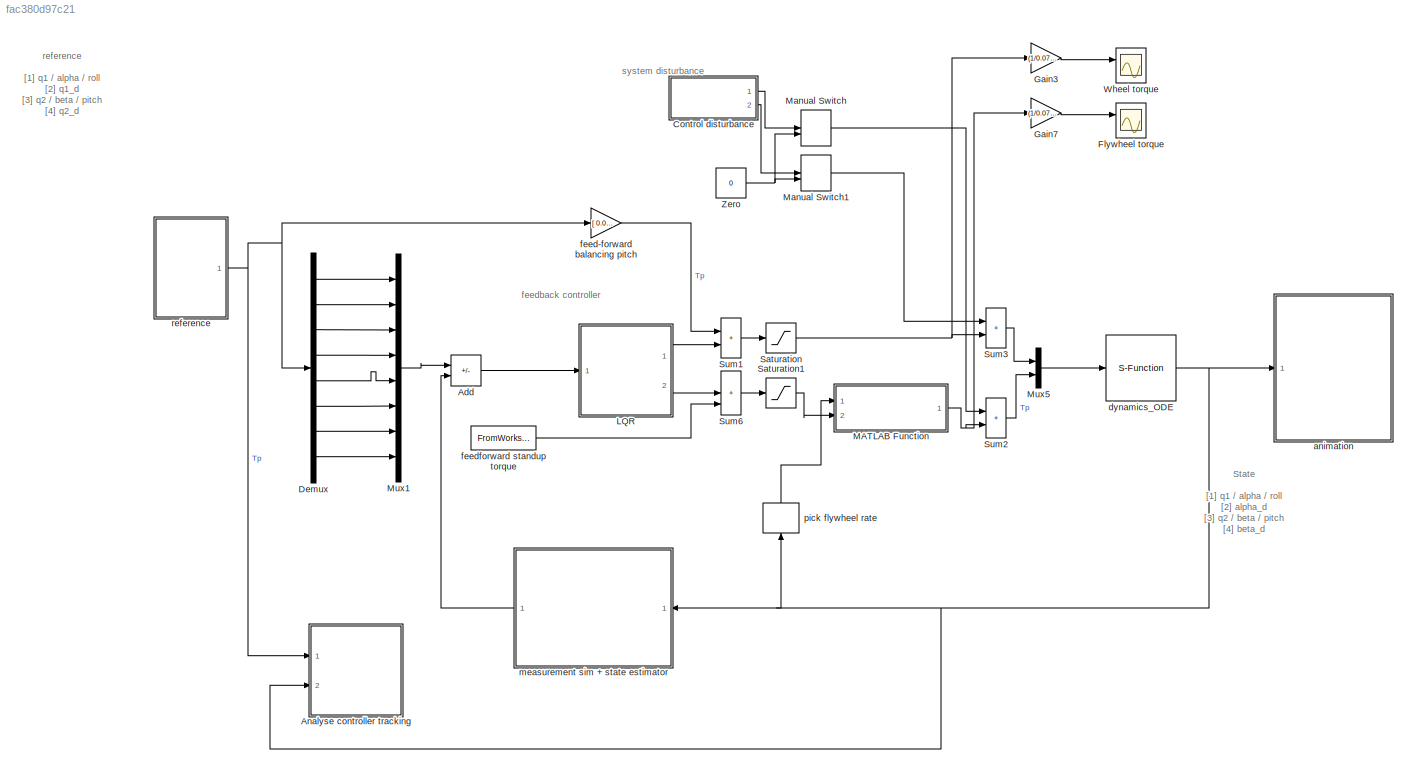
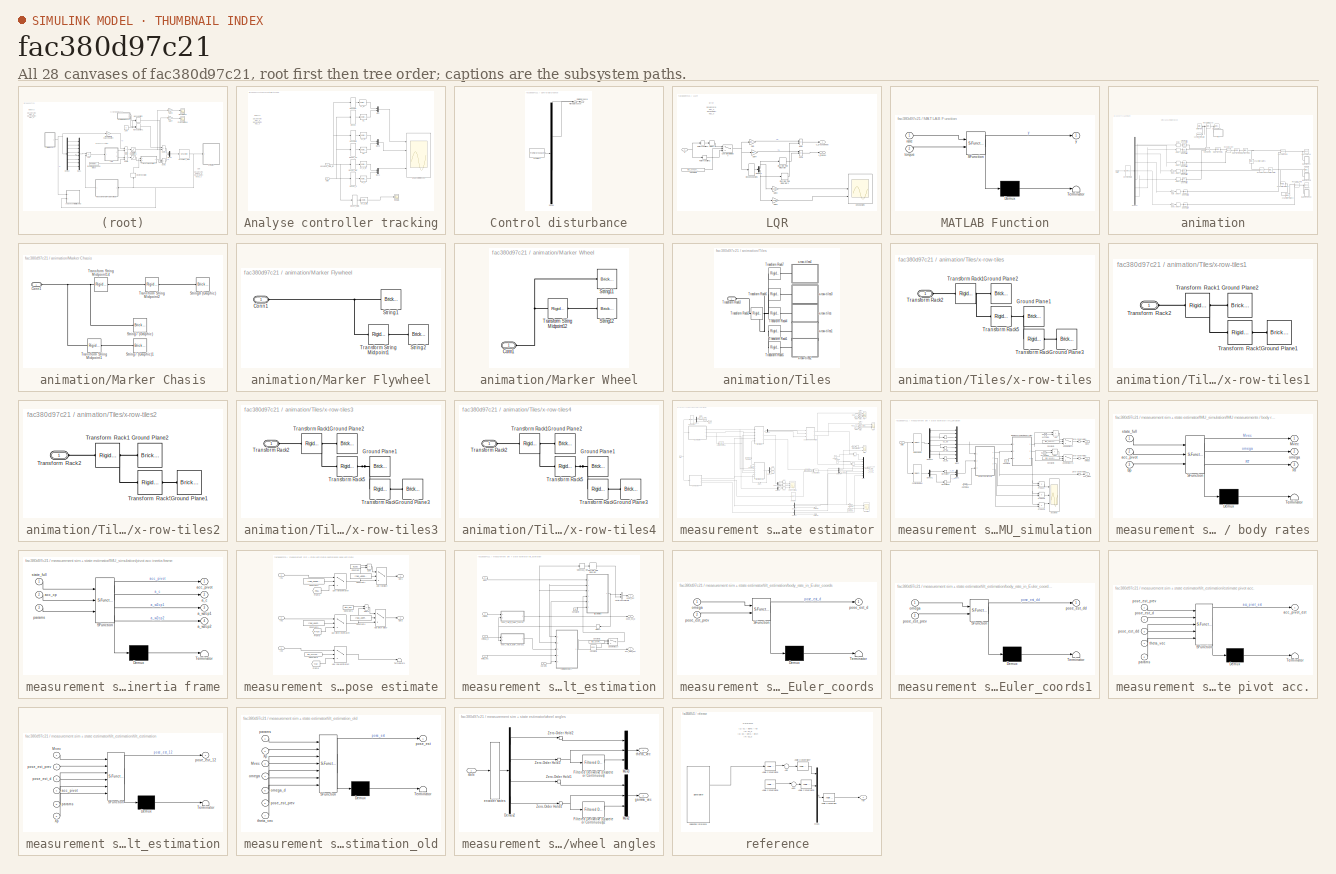
[diagram: thumbnail index - all 28 canvases of the model, root first then tree order]
MODEL slx_fac380d97c21
KIND model
CONFIG AbsTol = auto
CONFIG EnableMultiTasking = off
CONFIG FixedStep = 0.001
CONFIG InitFcn = clc, close all\n\nrun('./s00_config.m')\n\nload('./parameters/ut_obj')\nload('./parameters/yt_obj')\nload('./parameters/Kp')\nload('./parameters/Kr')\nload('./parameters/Mp')\nload('./parameters/Mr')\n\niterSeed = randi(500);
CONFIG MaxStep = auto
CONFIG MinStep = auto
CONFIG RelTol = auto
CONFIG SampleTimeConstraint = Unconstrained
CONFIG Solver = VariableStepAuto
CONFIG SolverName = VariableStepAuto
CONFIG StartTime = 0.0
CONFIG StopTime = 20
WORKSPACE source: mxarray member
WORKSPACE M: object (value not decoded)
WORKSPACE M_nonlin: object (value not decoded)
WORKSPACE M_tmp: object (value not decoded)
WORKSPACE RHS: object (value not decoded)
WORKSPACE RHS_nonlin: object (value not decoded)
WORKSPACE RHS_tmp: object (value not decoded)
WORKSPACE Tp: object (value not decoded)
WORKSPACE Tp_var = 0
WORKSPACE Tw: object (value not decoded)
WORKSPACE Tw_var = 0
WORKSPACE op_trim3: handle (value not decoded)
WORKSPACE q1: object (value not decoded)
WORKSPACE q1_d: object (value not decoded)
WORKSPACE q2: object (value not decoded)
WORKSPACE q2_d: object (value not decoded)
WORKSPACE q3: object (value not decoded)
WORKSPACE q3_d: object (value not decoded)
WORKSPACE q4: object (value not decoded)
WORKSPACE q4_d: object (value not decoded)
WORKSPACE q5: object (value not decoded)
WORKSPACE q5_d: object (value not decoded)
WORKSPACE z = [0 0 0 0 0 0 0 0 0 0 0 0 ... (100 elements, 10x10)]
BLOCK [Sum] Add
  IconShape = rectangular
  Inputs = -+
  Ports = [2, 1]
BLOCK [SubSystem] Analyse controller tracking
  Ports = [2]
  RequestExecContextInheritance = off
BLOCK [Mux] Analyse controller tracking/Mux
  DisplayOption = bar
  Inputs = 2
  Ports = [2, 1]
BLOCK [Mux] Analyse controller tracking/Mux1
  DisplayOption = bar
  Inputs = 2
  Ports = [2, 1]
BLOCK [Mux] Analyse controller tracking/Mux3
  DisplayOption = bar
  Inputs = 2
  Ports = [2, 1]
BLOCK [Scope] Analyse controller tracking/Scope
  Floating = off
  NumInputPorts = 1
  Ports = [1]
  ScopeSpecificationString = Simulink.scopes.TimeScopeBlockCfg('CurrentConfiguration', extmgr.ConfigurationSet(extmgr.Configuration('Core','General UI',true),extmgr.Configuration('Core','Source UI',true),extmgr.Configuration('Sources','WiredSimulink',true,'DataLoggingVariableName','ScopeData1'),extmgr.Configuration('Visuals','Time Domain',true,'SerializedDisplays',{struct('MinYLimReal','-1.00000','MaxYLimReal','1.00000','YLab...<+1368ch>
BLOCK [Scope] Analyse controller tracking/analyse references
  Floating = off
  NumInputPorts = 4
  Ports = [4]
  ScopeSpecificationString = Simulink.scopes.TimeScopeBlockCfg('CurrentConfiguration', extmgr.ConfigurationSet(extmgr.Configuration('Core','General UI',true),extmgr.Configuration('Core','Source UI',true),extmgr.Configuration('Sources','WiredSimulink',true,'DataLoggingVariableName','ScopeData1'),extmgr.Configuration('Visuals','Time Domain',true,'SerializedDisplays',{struct('MinYLimReal','-48.62631','MaxYLimReal','13.22817','YL...<+4126ch>
BLOCK [Inport] Analyse controller tracking/observed_state_ref
BLOCK [Selector] Analyse controller tracking/pick q1
  IndexOptions = Index vector (dialog)
  Indices = [1]
  InputPortWidth = 14
  OutputSizes = 1
  Ports = [1, 1]
BLOCK [Selector] Analyse controller tracking/pick q1 ref
  IndexOptions = Index vector (dialog)
  Indices = [1]
  InputPortWidth = 8
  OutputSizes = 1
  Ports = [1, 1]
BLOCK [Selector] Analyse controller tracking/pick q2 ref1
  IndexOptions = Index vector (dialog)
  Indices = [3]
  InputPortWidth = 8
  OutputSizes = 1
  Ports = [1, 1]
BLOCK [Selector] Analyse controller tracking/pick q4_d
  IndexOptions = Index vector (dialog)
  Indices = [8]
  InputPortWidth = 14
  OutputSizes = 1
  Ports = [1, 1]
BLOCK [Selector] Analyse controller tracking/pick q4_d ref
  IndexOptions = Index vector (dialog)
  Indices = [6]
  InputPortWidth = 8
  OutputSizes = 1
  Ports = [1, 1]
BLOCK [Selector] Analyse controller tracking/pick q4_d ref1
  IndexOptions = Index vector (dialog)
  Indices = [8]
  InputPortWidth = 8
  OutputSizes = 1
  Ports = [1, 1]
BLOCK [Selector] Analyse controller tracking/pick q4_d1
  IndexOptions = Index vector (dialog)
  Indices = [3]
  InputPortWidth = 14
  OutputSizes = 1
  Ports = [1, 1]
BLOCK [Reference] Analyse controller tracking/q1  REF=aerolibconvert2/Angle Conversion
  Ports = [1, 1]
  SourceBlock = aerolibconvert2/Angle Conversion
  SourceProductBaseCode = AE
  SourceType = Angle Conversion
BLOCK [Reference] Analyse controller tracking/q1_ref  REF=aerolibconvert2/Angle Conversion
  Ports = [1, 1]
  SourceBlock = aerolibconvert2/Angle Conversion
  SourceProductBaseCode = AE
  SourceType = Angle Conversion
BLOCK [Reference] Analyse controller tracking/q2  REF=aerolibconvert2/Angle Conversion
  Ports = [1, 1]
  SourceBlock = aerolibconvert2/Angle Conversion
  SourceProductBaseCode = AE
  SourceType = Angle Conversion
BLOCK [Reference] Analyse controller tracking/q2_ref  REF=aerolibconvert2/Angle Conversion
  Ports = [1, 1]
  SourceBlock = aerolibconvert2/Angle Conversion
  SourceProductBaseCode = AE
  SourceType = Angle Conversion
BLOCK [Reference] Analyse controller tracking/q4_d  REF=aerolibconvert2/Angle Conversion
  Ports = [1, 1]
  SourceBlock = aerolibconvert2/Angle Conversion
  SourceProductBaseCode = AE
  SourceType = Angle Conversion
BLOCK [Reference] Analyse controller tracking/q4_d_ref  REF=aerolibconvert2/Angle Conversion
  Ports = [1, 1]
  SourceBlock = aerolibconvert2/Angle Conversion
  SourceProductBaseCode = AE
  SourceType = Angle Conversion
BLOCK [Reference] Analyse controller tracking/q4_d_ref1  REF=aerolibconvert2/Angle Conversion
  Ports = [1, 1]
  SourceBlock = aerolibconvert2/Angle Conversion
  SourceProductBaseCode = AE
  SourceType = Angle Conversion
BLOCK [Inport] Analyse controller tracking/state
  Port = 2
BLOCK [SubSystem] Control disturbance
  ClipboardFcn = sigbuilder_block('clipboard');
  CloseFcn = sigbuilder_block('close');
  ContinueFcn = sigbuilder_block('continue');
  CopyFcn = sigbuilder_block('copy');
  DeleteFcn = sigbuilder_block('delete');
  LoadFcn = sigbuilder_block('load');
  MaskHideContents = on
  ModelCloseFcn = sigbuilder_block('modelClose');
  NameChangeFcn = sigbuilder_block('namechange');
  OpenFcn = sigbuilder_block('open',[437.6 199.2 550.4 400 ]);
  PauseFcn = sigbuilder_block('pause');
  Ports = [0, 2]
  PreSaveFcn = sigbuilder_block('preSave');
  RequestExecContextInheritance = off
  StartFcn = sigbuilder_block('start');
  StopFcn = sigbuilder_block('stop');
  Tag = STV Subsys
BLOCK [Demux] Control disturbance/Demux
  DisplayOption = none
  Outputs = 2
  Ports = [1, 2]
  Tag = STV Demux
BLOCK [FromWorkspace] Control disturbance/FromWs
  Tag = STV FromWs
  VariableName = tuvar
BLOCK [Outport] Control disturbance/Pitch disturbance
  Tag = STV Outport
BLOCK [Outport] Control disturbance/Roll disturbance
  Port = 2
  Tag = STV Outport
BLOCK [Demux] Demux
  Outputs = 8
  Ports = [1, 8]
BLOCK [Scope] Flywheel torque
  Floating = off
  NumInputPorts = 2
  Ports = [2]
  ScopeSpecificationString = Simulink.scopes.TimeScopeBlockCfg('CurrentConfiguration', extmgr.ConfigurationSet(extmgr.Configuration('Core','General UI',true),extmgr.Configuration('Core','Source UI',true),extmgr.Configuration('Sources','WiredSimulink',true,'DataLoggingVariableName','ScopeData2'),extmgr.Configuration('Visuals','Time Domain',true,'SerializedDisplays',{struct('MinYLimReal','-21.33333','MaxYLimReal','21.33333','YL...<+1551ch>
BLOCK [Gain] Gain3
  Gain = (1/0.075)
BLOCK [Gain] Gain7
  Gain = (1/0.075)
BLOCK [SubSystem] LQR
  Ports = [1, 2]
  RequestExecContextInheritance = off
BLOCK [Constant] LQR/Constant6
  Value = flag_useControlDelay
BLOCK [Delay] LQR/Delay1
  InputPortMap = u0
  Ports = [1, 1]
  SampleTime = Ts
BLOCK [Demux] LQR/Demux1
  Outputs = 2
  Ports = [1, 2]
BLOCK [DiscreteIntegrator] LQR/Discrete-Time Integrator
  ICPrevOutput = DiscIntNeverNeededParam
  ICPrevScaledInput = DiscIntNeverNeededParam
  InitialConditionSetting = Auto
  Ports = [1, 1]
  SampleTime = -1
  gainval = gain_int_roll
BLOCK [DiscreteIntegrator] LQR/Discrete-Time Integrator2
  ICPrevOutput = DiscIntNeverNeededParam
  ICPrevScaledInput = DiscIntNeverNeededParam
  InitialConditionSetting = Auto
  Ports = [1, 1]
  SampleTime = -1
  gainval = gain_int_pitch
BLOCK [Gain] LQR/Gain
  Gain = [  0.00  0.00    Kp(1)   Kp(2)   Kp(3)  Kp(4)   0.00   0.00  ]
  Multiplication = Matrix(K*u) (u vector)
BLOCK [Gain] LQR/Gain2
  Gain = 180/pi
BLOCK [Gain] LQR/Gain3
  Gain = 180/pi
BLOCK [Gain] LQR/Gain4
  Gain = [ Kr(1)    Kr(2)    0.00    -0.00    0.00    0.00    Kr(3)    Kr(4) ]
  Multiplication = Matrix(K*u) (u vector)
BLOCK [RateTransition] LQR/Rate Transition1
  OutPortSampleTime = Ts
BLOCK [RateTransition] LQR/Rate Transition2
  OutPortSampleTime = Ts
BLOCK [Sum] LQR/Sum
  IconShape = rectangular
  Inputs = |--
  Ports = [2, 1]
BLOCK [Sum] LQR/Sum1
  IconShape = rectangular
  Inputs = |-++
  Ports = [3, 1]
BLOCK [Switch] LQR/Use rate estimates?
  Criteria = u2 > Threshold
  InputSameDT = off
  NameLocation = top
  SaturateOnIntegerOverflow = off
BLOCK [Inport] LQR/e
BLOCK [Selector] LQR/pick pose angles
  IndexOptions = Index vector (dialog)
  Indices = [1,3]
  InputPortWidth = 8
  OutputSizes = 1
  Ports = [1, 1]
BLOCK [Scope] LQR/pose angles
  Floating = off
  NumInputPorts = 3
  Ports = [3]
  ScopeSpecificationString = Simulink.scopes.TimeScopeBlockCfg('CurrentConfiguration', extmgr.ConfigurationSet(extmgr.Configuration('Core','General UI',true),extmgr.Configuration('Core','Source UI',true),extmgr.Configuration('Sources','WiredSimulink',true,'DataLoggingVariableName','ScopeData1'),extmgr.Configuration('Visuals','Time Domain',true,'SerializedDisplays',{struct('MinYLimReal','-2185.39764','MaxYLimReal','4128.27945'...<+1504ch>
BLOCK [Outport] LQR/u_flywheel
  Port = 2
  VectorParamsAs1DForOutWhenUnconnected = off
BLOCK [Outport] LQR/u_groundwheel
  VectorParamsAs1DForOutWhenUnconnected = off
BLOCK [SubSystem] MATLAB Function
  ErrorFcn = Stateflow.Translate.translate
  PermitHierarchicalResolution = ExplicitOnly
  Ports = [2, 1]
  RequestExecContextInheritance = off
  SFBlockType = MATLAB Function
  TreatAsAtomicUnit = on
BLOCK [Demux] MATLAB Function/ Demux 
  Outputs = 1
  Ports = [1, 1]
BLOCK [S-Function] MATLAB Function/ SFunction 
  EnableBusSupport = on
  FunctionName = sf_sfun
  PortCounts = [2 2]
  Ports = [2, 2]
  SFcnIsStateOwnerBlock = off
  SFunctionDeploymentMode = off
  Tag = Stateflow S-Function 12
BLOCK [Terminator] MATLAB Function/ Terminator 
BLOCK [Inport] MATLAB Function/rate
BLOCK [Inport] MATLAB Function/torque
  Port = 2
BLOCK [Outport] MATLAB Function/y
BLOCK [ManualSwitch] Manual Switch
  CurrentSetting = 0
BLOCK [ManualSwitch] Manual Switch1
  CurrentSetting = 0
BLOCK [Mux] Mux1
  DisplayOption = bar
  Inputs = 8
  Ports = [8, 1]
BLOCK [Mux] Mux5
  DisplayOption = bar
  Inputs = 2
  Ports = [2, 1]
BLOCK [Saturate] Saturation
  LowerLimit = -stall_torque
  UpperLimit = stall_torque
BLOCK [Saturate] Saturation1
  LowerLimit = -stall_torque
  UpperLimit = stall_torque
BLOCK [Sum] Sum1
  IconShape = rectangular
  Ports = [2, 1]
BLOCK [Sum] Sum2
  IconShape = rectangular
  Ports = [2, 1]
BLOCK [Sum] Sum3
  IconShape = rectangular
  Ports = [2, 1]
BLOCK [Sum] Sum6
  IconShape = rectangular
  Inputs = +++
  Ports = [3, 1]
BLOCK [Scope] Wheel torque
  Floating = off
  NumInputPorts = 2
  Ports = [2]
  ScopeSpecificationString = Simulink.scopes.TimeScopeBlockCfg('CurrentConfiguration', extmgr.ConfigurationSet(extmgr.Configuration('Core','General UI',true),extmgr.Configuration('Core','Source UI',true),extmgr.Configuration('Sources','WiredSimulink',true,'DataLoggingVariableName','ScopeData1'),extmgr.Configuration('Visuals','Time Domain',true,'SerializedDisplays',{struct('MinYLimReal','-21.33333','MaxYLimReal','21.33333','YL...<+1551ch>
BLOCK [Constant] Zero
  OutDataTypeStr = Inherit: Inherit via back propagation
  Value = 0
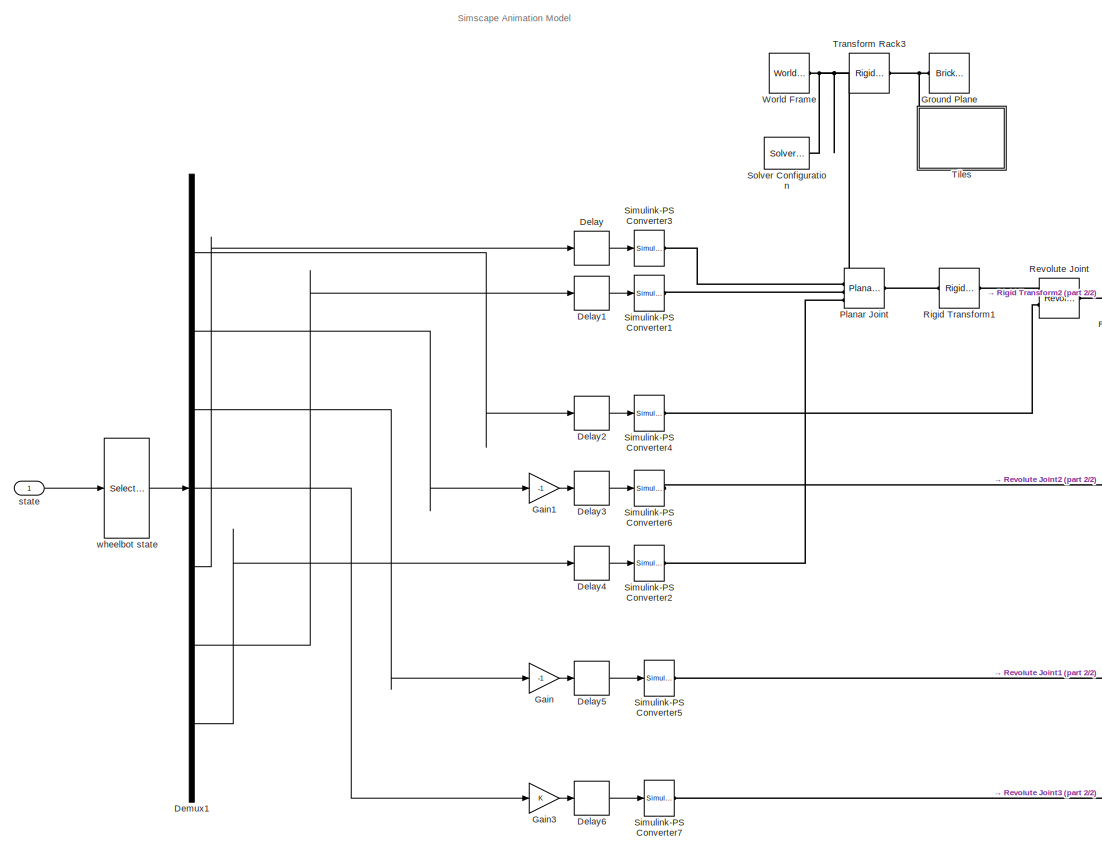
[diagram: animation - part 1/2, left side, full height]
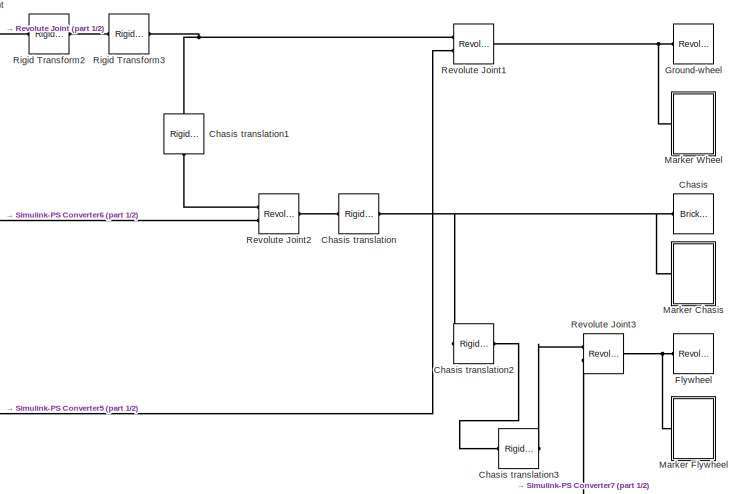
[diagram: animation - part 2/2, middle right region]
BLOCK [SubSystem] animation
  Ports = [1]
  RequestExecContextInheritance = off
BLOCK [Reference] animation/Chasis  REF=sm_lib/Body Elements/Brick Solid
  Ports = [0, 0, 0, 0, 0, 0, 1]
  SourceBlock = sm_lib/Body Elements/Brick Solid
  SourceProductBaseCode = MS
  SourceType = Brick Solid
BLOCK [Reference] animation/Chasis translation  REF=sm_lib/Frames and
Transforms/Rigid
Transform
  Ports = [0, 0, 0, 0, 0, 1, 1]
  SourceBlock = sm_lib/Frames and\nTransforms/Rigid\nTransform
  SourceProductBaseCode = MS
  SourceType = Rigid\nTransform
BLOCK [Reference] animation/Chasis translation1  REF=sm_lib/Frames and
Transforms/Rigid
Transform
  NameLocation = left
  Ports = [0, 0, 0, 0, 0, 1, 1]
  SourceBlock = sm_lib/Frames and\nTransforms/Rigid\nTransform
  SourceProductBaseCode = MS
  SourceType = Rigid\nTransform
BLOCK [Reference] animation/Chasis translation2  REF=sm_lib/Frames and
Transforms/Rigid
Transform
  Ports = [0, 0, 0, 0, 0, 1, 1]
  SourceBlock = sm_lib/Frames and\nTransforms/Rigid\nTransform
  SourceProductBaseCode = MS
  SourceType = Rigid\nTransform
BLOCK [Reference] animation/Chasis translation3  REF=sm_lib/Frames and
Transforms/Rigid
Transform
  Ports = [0, 0, 0, 0, 0, 1, 1]
  SourceBlock = sm_lib/Frames and\nTransforms/Rigid\nTransform
  SourceProductBaseCode = MS
  SourceType = Rigid\nTransform
BLOCK [Delay] animation/Delay
  DelayLength = 1
  InputPortMap = u0
  Ports = [1, 1]
BLOCK [Delay] animation/Delay1
  DelayLength = 1
  InputPortMap = u0
  Ports = [1, 1]
BLOCK [Delay] animation/Delay2
  DelayLength = 1
  InputPortMap = u0
  Ports = [1, 1]
BLOCK [Delay] animation/Delay3
  DelayLength = 1
  InputPortMap = u0
  Ports = [1, 1]
BLOCK [Delay] animation/Delay4
  DelayLength = 1
  InputPortMap = u0
  Ports = [1, 1]
BLOCK [Delay] animation/Delay5
  DelayLength = 1
  InputPortMap = u0
  Ports = [1, 1]
BLOCK [Delay] animation/Delay6
  DelayLength = 1
  InputPortMap = u0
  Ports = [1, 1]
BLOCK [Demux] animation/Demux1
  Outputs = 7
  Ports = [1, 7]
BLOCK [Reference] animation/Flywheel  REF=sm_lib/Body Elements/Revolved Solid
  Ports = [0, 0, 0, 0, 0, 0, 1]
  SourceBlock = sm_lib/Body Elements/Revolved Solid
  SourceProductBaseCode = MS
  SourceType = Revolved Solid
BLOCK [Gain] animation/Gain
  Gain = -1
BLOCK [Gain] animation/Gain1
  Gain = -1
BLOCK [Gain] animation/Gain3
BLOCK [Reference] animation/Ground Plane  REF=sm_lib/Body Elements/Brick Solid
  NameLocation = top
  Ports = [0, 0, 0, 0, 0, 0, 1]
  SourceBlock = sm_lib/Body Elements/Brick Solid
  SourceProductBaseCode = MS
  SourceType = Brick Solid
BLOCK [Reference] animation/Ground-wheel  REF=sm_lib/Body Elements/Revolved Solid
  Ports = [0, 0, 0, 0, 0, 0, 1]
  SourceBlock = sm_lib/Body Elements/Revolved Solid
  SourceProductBaseCode = MS
  SourceType = Revolved Solid
BLOCK [SubSystem] animation/Marker Chasis
  Ports = [0, 0, 0, 0, 0, 1]
  RequestExecContextInheritance = off
BLOCK [PMIOPort] animation/Marker Chasis/Conn1
  Side = Left
BLOCK [Reference] animation/Marker Chasis/String7 (Graphic)  REF=sm_lib/Body Elements/Brick Solid
  Ports = [0, 0, 0, 0, 0, 0, 1]
  SourceBlock = sm_lib/Body Elements/Brick Solid
  SourceProductBaseCode = MS
  SourceType = Brick Solid
BLOCK [Reference] animation/Marker Chasis/String7 (Graphic)1  REF=sm_lib/Body Elements/Brick Solid
  Ports = [0, 0, 0, 0, 0, 0, 1]
  SourceBlock = sm_lib/Body Elements/Brick Solid
  SourceProductBaseCode = MS
  SourceType = Brick Solid
BLOCK [Reference] animation/Marker Chasis/String8 (Graphic)  REF=sm_lib/Body Elements/Brick Solid
  Ports = [0, 0, 0, 0, 0, 0, 1]
  SourceBlock = sm_lib/Body Elements/Brick Solid
  SourceProductBaseCode = MS
  SourceType = Brick Solid
BLOCK [Reference] animation/Marker Chasis/Transform String Midpoint1  REF=sm_lib/Frames and
Transforms/Rigid
Transform
  Ports = [0, 0, 0, 0, 0, 1, 1]
  SourceBlock = sm_lib/Frames and\nTransforms/Rigid\nTransform
  SourceProductBaseCode = MS
  SourceType = Rigid\nTransform
BLOCK [Reference] animation/Marker Chasis/Transform String Midpoint14  REF=sm_lib/Frames and
Transforms/Rigid
Transform
  Ports = [0, 0, 0, 0, 0, 1, 1]
  SourceBlock = sm_lib/Frames and\nTransforms/Rigid\nTransform
  SourceProductBaseCode = MS
  SourceType = Rigid\nTransform
BLOCK [Reference] animation/Marker Chasis/Transform String Midpoint2  REF=sm_lib/Frames and
Transforms/Rigid
Transform
  Ports = [0, 0, 0, 0, 0, 1, 1]
  SourceBlock = sm_lib/Frames and\nTransforms/Rigid\nTransform
  SourceProductBaseCode = MS
  SourceType = Rigid\nTransform
BLOCK [SubSystem] animation/Marker Flywheel
  Ports = [0, 0, 0, 0, 0, 1]
  RequestExecContextInheritance = off
BLOCK [PMIOPort] animation/Marker Flywheel/Conn1
  Side = Left
BLOCK [Reference] animation/Marker Flywheel/String1  REF=sm_lib/Body Elements/Brick Solid
  Ports = [0, 0, 0, 0, 0, 0, 1]
  SourceBlock = sm_lib/Body Elements/Brick Solid
  SourceProductBaseCode = MS
  SourceType = Brick Solid
BLOCK [Reference] animation/Marker Flywheel/String2  REF=sm_lib/Body Elements/Brick Solid
  Ports = [0, 0, 0, 0, 0, 0, 1]
  SourceBlock = sm_lib/Body Elements/Brick Solid
  SourceProductBaseCode = MS
  SourceType = Brick Solid
BLOCK [Reference] animation/Marker Flywheel/Transform String Midpoint1  REF=sm_lib/Frames and
Transforms/Rigid
Transform
  Ports = [0, 0, 0, 0, 0, 1, 1]
  SourceBlock = sm_lib/Frames and\nTransforms/Rigid\nTransform
  SourceProductBaseCode = MS
  SourceType = Rigid\nTransform
BLOCK [SubSystem] animation/Marker Wheel
  Ports = [0, 0, 0, 0, 0, 1]
  RequestExecContextInheritance = off
BLOCK [PMIOPort] animation/Marker Wheel/Conn1
  Side = Left
BLOCK [Reference] animation/Marker Wheel/String11  REF=sm_lib/Body Elements/Brick Solid
  Ports = [0, 0, 0, 0, 0, 0, 1]
  SourceBlock = sm_lib/Body Elements/Brick Solid
  SourceProductBaseCode = MS
  SourceType = Brick Solid
BLOCK [Reference] animation/Marker Wheel/String12  REF=sm_lib/Body Elements/Brick Solid
  Ports = [0, 0, 0, 0, 0, 0, 1]
  SourceBlock = sm_lib/Body Elements/Brick Solid
  SourceProductBaseCode = MS
  SourceType = Brick Solid
BLOCK [Reference] animation/Marker Wheel/Transform String Midpoint12  REF=sm_lib/Frames and
Transforms/Rigid
Transform
  Ports = [0, 0, 0, 0, 0, 1, 1]
  SourceBlock = sm_lib/Frames and\nTransforms/Rigid\nTransform
  SourceProductBaseCode = MS
  SourceType = Rigid\nTransform
BLOCK [Reference] animation/Planar Joint  REF=sm_lib/Joints/Planar Joint
  Ports = [0, 0, 0, 0, 0, 4, 1]
  SourceBlock = sm_lib/Joints/Planar Joint
  SourceProductBaseCode = MS
  SourceType = Planar Joint
BLOCK [Reference] animation/Revolute Joint  REF=sm_lib/Joints/Revolute Joint
  Ports = [0, 0, 0, 0, 0, 2, 1]
  SourceBlock = sm_lib/Joints/Revolute Joint
  SourceProductBaseCode = MS
  SourceType = Revolute Joint
BLOCK [Reference] animation/Revolute Joint1  REF=sm_lib/Joints/Revolute Joint
  Ports = [0, 0, 0, 0, 0, 2, 1]
  SourceBlock = sm_lib/Joints/Revolute Joint
  SourceProductBaseCode = MS
  SourceType = Revolute Joint
BLOCK [Reference] animation/Revolute Joint2  REF=sm_lib/Joints/Revolute Joint
  Ports = [0, 0, 0, 0, 0, 2, 1]
  SourceBlock = sm_lib/Joints/Revolute Joint
  SourceProductBaseCode = MS
  SourceType = Revolute Joint
BLOCK [Reference] animation/Revolute Joint3  REF=sm_lib/Joints/Revolute Joint
  Ports = [0, 0, 0, 0, 0, 2, 1]
  SourceBlock = sm_lib/Joints/Revolute Joint
  SourceProductBaseCode = MS
  SourceType = Revolute Joint
BLOCK [Reference] animation/Rigid Transform1  REF=sm_lib/Frames and
Transforms/Rigid
Transform
  Ports = [0, 0, 0, 0, 0, 1, 1]
  SourceBlock = sm_lib/Frames and\nTransforms/Rigid\nTransform
  SourceProductBaseCode = MS
  SourceType = Rigid\nTransform
BLOCK [Reference] animation/Rigid Transform2  REF=sm_lib/Frames and
Transforms/Rigid
Transform
  Ports = [0, 0, 0, 0, 0, 1, 1]
  SourceBlock = sm_lib/Frames and\nTransforms/Rigid\nTransform
  SourceProductBaseCode = MS
  SourceType = Rigid\nTransform
BLOCK [Reference] animation/Rigid Transform3  REF=sm_lib/Frames and
Transforms/Rigid
Transform
  Ports = [0, 0, 0, 0, 0, 1, 1]
  SourceBlock = sm_lib/Frames and\nTransforms/Rigid\nTransform
  SourceProductBaseCode = MS
  SourceType = Rigid\nTransform
BLOCK [Reference] animation/Simulink-PS Converter1  REF=nesl_utility/Simulink-PS
Converter
  Ports = [1, 0, 0, 0, 0, 0, 1]
  SourceBlock = nesl_utility/Simulink-PS\nConverter
  SourceProductBaseCode = SS
  SourceType = Simulink-PS\nConverter
BLOCK [Reference] animation/Simulink-PS Converter2  REF=nesl_utility/Simulink-PS
Converter
  Ports = [1, 0, 0, 0, 0, 0, 1]
  SourceBlock = nesl_utility/Simulink-PS\nConverter
  SourceProductBaseCode = SS
  SourceType = Simulink-PS\nConverter
BLOCK [Reference] animation/Simulink-PS Converter3  REF=nesl_utility/Simulink-PS
Converter
  Ports = [1, 0, 0, 0, 0, 0, 1]
  SourceBlock = nesl_utility/Simulink-PS\nConverter
  SourceProductBaseCode = SS
  SourceType = Simulink-PS\nConverter
BLOCK [Reference] animation/Simulink-PS Converter4  REF=nesl_utility/Simulink-PS
Converter
  Ports = [1, 0, 0, 0, 0, 0, 1]
  SourceBlock = nesl_utility/Simulink-PS\nConverter
  SourceProductBaseCode = SS
  SourceType = Simulink-PS\nConverter
BLOCK [Reference] animation/Simulink-PS Converter5  REF=nesl_utility/Simulink-PS
Converter
  Ports = [1, 0, 0, 0, 0, 0, 1]
  SourceBlock = nesl_utility/Simulink-PS\nConverter
  SourceProductBaseCode = SS
  SourceType = Simulink-PS\nConverter
BLOCK [Reference] animation/Simulink-PS Converter6  REF=nesl_utility/Simulink-PS
Converter
  Ports = [1, 0, 0, 0, 0, 0, 1]
  SourceBlock = nesl_utility/Simulink-PS\nConverter
  SourceProductBaseCode = SS
  SourceType = Simulink-PS\nConverter
BLOCK [Reference] animation/Simulink-PS Converter7  REF=nesl_utility/Simulink-PS
Converter
  Ports = [1, 0, 0, 0, 0, 0, 1]
  SourceBlock = nesl_utility/Simulink-PS\nConverter
  SourceProductBaseCode = SS
  SourceType = Simulink-PS\nConverter
BLOCK [Reference] animation/Solver Configuration  REF=nesl_utility/Solver
Configuration
  Ports = [0, 0, 0, 0, 0, 0, 1]
  SourceBlock = nesl_utility/Solver\nConfiguration
  SourceProductBaseCode = SS
  SourceType = Solver\nConfiguration
BLOCK [SubSystem] animation/Tiles
  Ports = [0, 0, 0, 0, 0, 1]
  RequestExecContextInheritance = off
BLOCK [Reference] animation/Tiles/Transform Rack1  REF=sm_lib/Frames and
Transforms/Rigid
Transform
  Ports = [0, 0, 0, 0, 0, 1, 1]
  SourceBlock = sm_lib/Frames and\nTransforms/Rigid\nTransform
  SourceProductBaseCode = MS
  SourceType = Rigid\nTransform
BLOCK [Reference] animation/Tiles/Transform Rack2  REF=sm_lib/Frames and
Transforms/Rigid
Transform
  Ports = [0, 0, 0, 0, 0, 1, 1]
  SourceBlock = sm_lib/Frames and\nTransforms/Rigid\nTransform
  SourceProductBaseCode = MS
  SourceType = Rigid\nTransform
BLOCK [PMIOPort] animation/Tiles/Transform Rack3
  Side = Left
BLOCK [Reference] animation/Tiles/Transform Rack4  REF=sm_lib/Frames and
Transforms/Rigid
Transform
  Ports = [0, 0, 0, 0, 0, 1, 1]
  SourceBlock = sm_lib/Frames and\nTransforms/Rigid\nTransform
  SourceProductBaseCode = MS
  SourceType = Rigid\nTransform
BLOCK [Reference] animation/Tiles/Transform Rack5  REF=sm_lib/Frames and
Transforms/Rigid
Transform
  Ports = [0, 0, 0, 0, 0, 1, 1]
  SourceBlock = sm_lib/Frames and\nTransforms/Rigid\nTransform
  SourceProductBaseCode = MS
  SourceType = Rigid\nTransform
BLOCK [Reference] animation/Tiles/Transform Rack6  REF=sm_lib/Frames and
Transforms/Rigid
Transform
  Ports = [0, 0, 0, 0, 0, 1, 1]
  SourceBlock = sm_lib/Frames and\nTransforms/Rigid\nTransform
  SourceProductBaseCode = MS
  SourceType = Rigid\nTransform
BLOCK [Reference] animation/Tiles/Transform Rack7  REF=sm_lib/Frames and
Transforms/Rigid
Transform
  Ports = [0, 0, 0, 0, 0, 1, 1]
  SourceBlock = sm_lib/Frames and\nTransforms/Rigid\nTransform
  SourceProductBaseCode = MS
  SourceType = Rigid\nTransform
BLOCK [SubSystem] animation/Tiles/x-row-tiles
  Ports = [0, 0, 0, 0, 0, 1]
  RequestExecContextInheritance = off
BLOCK [Reference] animation/Tiles/x-row-tiles/Ground Plane1  REF=sm_lib/Body Elements/Brick Solid
  NameLocation = top
  Ports = [0, 0, 0, 0, 0, 0, 1]
  SourceBlock = sm_lib/Body Elements/Brick Solid
  SourceProductBaseCode = MS
  SourceType = Brick Solid
BLOCK [Reference] animation/Tiles/x-row-tiles/Ground Plane2  REF=sm_lib/Body Elements/Brick Solid
  NameLocation = top
  Ports = [0, 0, 0, 0, 0, 0, 1]
  SourceBlock = sm_lib/Body Elements/Brick Solid
  SourceProductBaseCode = MS
  SourceType = Brick Solid
BLOCK [Reference] animation/Tiles/x-row-tiles/Ground Plane3  REF=sm_lib/Body Elements/Brick Solid
  NameLocation = top
  Ports = [0, 0, 0, 0, 0, 0, 1]
  SourceBlock = sm_lib/Body Elements/Brick Solid
  SourceProductBaseCode = MS
  SourceType = Brick Solid
BLOCK [Reference] animation/Tiles/x-row-tiles/Transform Rack1  REF=sm_lib/Frames and
Transforms/Rigid
Transform
  Ports = [0, 0, 0, 0, 0, 1, 1]
  SourceBlock = sm_lib/Frames and\nTransforms/Rigid\nTransform
  SourceProductBaseCode = MS
  SourceType = Rigid\nTransform
BLOCK [PMIOPort] animation/Tiles/x-row-tiles/Transform Rack2
  Side = Left
BLOCK [Reference] animation/Tiles/x-row-tiles/Transform Rack5  REF=sm_lib/Frames and
Transforms/Rigid
Transform
  Ports = [0, 0, 0, 0, 0, 1, 1]
  SourceBlock = sm_lib/Frames and\nTransforms/Rigid\nTransform
  SourceProductBaseCode = MS
  SourceType = Rigid\nTransform
BLOCK [Reference] animation/Tiles/x-row-tiles/Transform Rack6  REF=sm_lib/Frames and
Transforms/Rigid
Transform
  Ports = [0, 0, 0, 0, 0, 1, 1]
  SourceBlock = sm_lib/Frames and\nTransforms/Rigid\nTransform
  SourceProductBaseCode = MS
  SourceType = Rigid\nTransform
BLOCK [SubSystem] animation/Tiles/x-row-tiles1
  Ports = [0, 0, 0, 0, 0, 1]
  RequestExecContextInheritance = off
BLOCK [Reference] animation/Tiles/x-row-tiles1/Ground Plane1  REF=sm_lib/Body Elements/Brick Solid
  NameLocation = top
  Ports = [0, 0, 0, 0, 0, 0, 1]
  SourceBlock = sm_lib/Body Elements/Brick Solid
  SourceProductBaseCode = MS
  SourceType = Brick Solid
BLOCK [Reference] animation/Tiles/x-row-tiles1/Ground Plane2  REF=sm_lib/Body Elements/Brick Solid
  NameLocation = top
  Ports = [0, 0, 0, 0, 0, 0, 1]
  SourceBlock = sm_lib/Body Elements/Brick Solid
  SourceProductBaseCode = MS
  SourceType = Brick Solid
BLOCK [Reference] animation/Tiles/x-row-tiles1/Transform Rack1  REF=sm_lib/Frames and
Transforms/Rigid
Transform
  Ports = [0, 0, 0, 0, 0, 1, 1]
  SourceBlock = sm_lib/Frames and\nTransforms/Rigid\nTransform
  SourceProductBaseCode = MS
  SourceType = Rigid\nTransform
BLOCK [PMIOPort] animation/Tiles/x-row-tiles1/Transform Rack2
  Side = Left
BLOCK [Reference] animation/Tiles/x-row-tiles1/Transform Rack5  REF=sm_lib/Frames and
Transforms/Rigid
Transform
  Ports = [0, 0, 0, 0, 0, 1, 1]
  SourceBlock = sm_lib/Frames and\nTransforms/Rigid\nTransform
  SourceProductBaseCode = MS
  SourceType = Rigid\nTransform
BLOCK [SubSystem] animation/Tiles/x-row-tiles2
  Ports = [0, 0, 0, 0, 0, 1]
  RequestExecContextInheritance = off
BLOCK [Reference] animation/Tiles/x-row-tiles2/Ground Plane1  REF=sm_lib/Body Elements/Brick Solid
  NameLocation = top
  Ports = [0, 0, 0, 0, 0, 0, 1]
  SourceBlock = sm_lib/Body Elements/Brick Solid
  SourceProductBaseCode = MS
  SourceType = Brick Solid
BLOCK [Reference] animation/Tiles/x-row-tiles2/Ground Plane2  REF=sm_lib/Body Elements/Brick Solid
  NameLocation = top
  Ports = [0, 0, 0, 0, 0, 0, 1]
  SourceBlock = sm_lib/Body Elements/Brick Solid
  SourceProductBaseCode = MS
  SourceType = Brick Solid
BLOCK [Reference] animation/Tiles/x-row-tiles2/Transform Rack1  REF=sm_lib/Frames and
Transforms/Rigid
Transform
  Ports = [0, 0, 0, 0, 0, 1, 1]
  SourceBlock = sm_lib/Frames and\nTransforms/Rigid\nTransform
  SourceProductBaseCode = MS
  SourceType = Rigid\nTransform
BLOCK [PMIOPort] animation/Tiles/x-row-tiles2/Transform Rack2
  Side = Left
BLOCK [Reference] animation/Tiles/x-row-tiles2/Transform Rack5  REF=sm_lib/Frames and
Transforms/Rigid
Transform
  Ports = [0, 0, 0, 0, 0, 1, 1]
  SourceBlock = sm_lib/Frames and\nTransforms/Rigid\nTransform
  SourceProductBaseCode = MS
  SourceType = Rigid\nTransform
BLOCK [SubSystem] animation/Tiles/x-row-tiles3
  Ports = [0, 0, 0, 0, 0, 1]
  RequestExecContextInheritance = off
BLOCK [Reference] animation/Tiles/x-row-tiles3/Ground Plane1  REF=sm_lib/Body Elements/Brick Solid
  NameLocation = top
  Ports = [0, 0, 0, 0, 0, 0, 1]
  SourceBlock = sm_lib/Body Elements/Brick Solid
  SourceProductBaseCode = MS
  SourceType = Brick Solid
BLOCK [Reference] animation/Tiles/x-row-tiles3/Ground Plane2  REF=sm_lib/Body Elements/Brick Solid
  NameLocation = top
  Ports = [0, 0, 0, 0, 0, 0, 1]
  SourceBlock = sm_lib/Body Elements/Brick Solid
  SourceProductBaseCode = MS
  SourceType = Brick Solid
BLOCK [Reference] animation/Tiles/x-row-tiles3/Ground Plane3  REF=sm_lib/Body Elements/Brick Solid
  NameLocation = top
  Ports = [0, 0, 0, 0, 0, 0, 1]
  SourceBlock = sm_lib/Body Elements/Brick Solid
  SourceProductBaseCode = MS
  SourceType = Brick Solid
BLOCK [Reference] animation/Tiles/x-row-tiles3/Transform Rack1  REF=sm_lib/Frames and
Transforms/Rigid
Transform
  Ports = [0, 0, 0, 0, 0, 1, 1]
  SourceBlock = sm_lib/Frames and\nTransforms/Rigid\nTransform
  SourceProductBaseCode = MS
  SourceType = Rigid\nTransform
BLOCK [PMIOPort] animation/Tiles/x-row-tiles3/Transform Rack2
  Side = Left
BLOCK [Reference] animation/Tiles/x-row-tiles3/Transform Rack5  REF=sm_lib/Frames and
Transforms/Rigid
Transform
  Ports = [0, 0, 0, 0, 0, 1, 1]
  SourceBlock = sm_lib/Frames and\nTransforms/Rigid\nTransform
  SourceProductBaseCode = MS
  SourceType = Rigid\nTransform
BLOCK [Reference] animation/Tiles/x-row-tiles3/Transform Rack6  REF=sm_lib/Frames and
Transforms/Rigid
Transform
  Ports = [0, 0, 0, 0, 0, 1, 1]
  SourceBlock = sm_lib/Frames and\nTransforms/Rigid\nTransform
  SourceProductBaseCode = MS
  SourceType = Rigid\nTransform
BLOCK [SubSystem] animation/Tiles/x-row-tiles4
  Ports = [0, 0, 0, 0, 0, 1]
  RequestExecContextInheritance = off
BLOCK [Reference] animation/Tiles/x-row-tiles4/Ground Plane1  REF=sm_lib/Body Elements/Brick Solid
  NameLocation = top
  Ports = [0, 0, 0, 0, 0, 0, 1]
  SourceBlock = sm_lib/Body Elements/Brick Solid
  SourceProductBaseCode = MS
  SourceType = Brick Solid
BLOCK [Reference] animation/Tiles/x-row-tiles4/Ground Plane2  REF=sm_lib/Body Elements/Brick Solid
  NameLocation = top
  Ports = [0, 0, 0, 0, 0, 0, 1]
  SourceBlock = sm_lib/Body Elements/Brick Solid
  SourceProductBaseCode = MS
  SourceType = Brick Solid
BLOCK [Reference] animation/Tiles/x-row-tiles4/Ground Plane3  REF=sm_lib/Body Elements/Brick Solid
  NameLocation = top
  Ports = [0, 0, 0, 0, 0, 0, 1]
  SourceBlock = sm_lib/Body Elements/Brick Solid
  SourceProductBaseCode = MS
  SourceType = Brick Solid
BLOCK [Reference] animation/Tiles/x-row-tiles4/Transform Rack1  REF=sm_lib/Frames and
Transforms/Rigid
Transform
  Ports = [0, 0, 0, 0, 0, 1, 1]
  SourceBlock = sm_lib/Frames and\nTransforms/Rigid\nTransform
  SourceProductBaseCode = MS
  SourceType = Rigid\nTransform
BLOCK [PMIOPort] animation/Tiles/x-row-tiles4/Transform Rack2
  Side = Left
BLOCK [Reference] animation/Tiles/x-row-tiles4/Transform Rack5  REF=sm_lib/Frames and
Transforms/Rigid
Transform
  Ports = [0, 0, 0, 0, 0, 1, 1]
  SourceBlock = sm_lib/Frames and\nTransforms/Rigid\nTransform
  SourceProductBaseCode = MS
  SourceType = Rigid\nTransform
BLOCK [Reference] animation/Tiles/x-row-tiles4/Transform Rack6  REF=sm_lib/Frames and
Transforms/Rigid
Transform
  Ports = [0, 0, 0, 0, 0, 1, 1]
  SourceBlock = sm_lib/Frames and\nTransforms/Rigid\nTransform
  SourceProductBaseCode = MS
  SourceType = Rigid\nTransform
BLOCK [Reference] animation/Transform Rack3  REF=sm_lib/Frames and
Transforms/Rigid
Transform
  Ports = [0, 0, 0, 0, 0, 1, 1]
  SourceBlock = sm_lib/Frames and\nTransforms/Rigid\nTransform
  SourceProductBaseCode = MS
  SourceType = Rigid\nTransform
BLOCK [Reference] animation/World Frame  REF=sm_lib/Frames and
Transforms/World Frame
  Ports = [0, 0, 0, 0, 0, 0, 1]
  SourceBlock = sm_lib/Frames and\nTransforms/World Frame
  SourceProductBaseCode = MS
  SourceType = World Frame
BLOCK [Inport] animation/state
BLOCK [Selector] animation/wheelbot state
  IndexOptions = Index vector (dialog)
  Indices = [1 3 7 9 11 12 5]
  InputPortWidth = 14
  OutputSizes = 1
  Ports = [1, 1]
BLOCK [S-Function] dynamics_ODE
  EnableBusSupport = off
  FunctionName = unicycleSFun
  Ports = [1, 1]
  SFcnIsStateOwnerBlock = off
  SFunctionDeploymentMode = off
BLOCK [Gain] feed-forward balancing pitch
  Gain = [   0.0  0.0    Kp(1)   Kp(2)   Kp(3)  Kp(4)   0.0   0.0]
  Multiplication = Matrix(K*u) (u vector)
BLOCK [FromWorkspace] feedforward standup torque
  VariableName = ut_obj
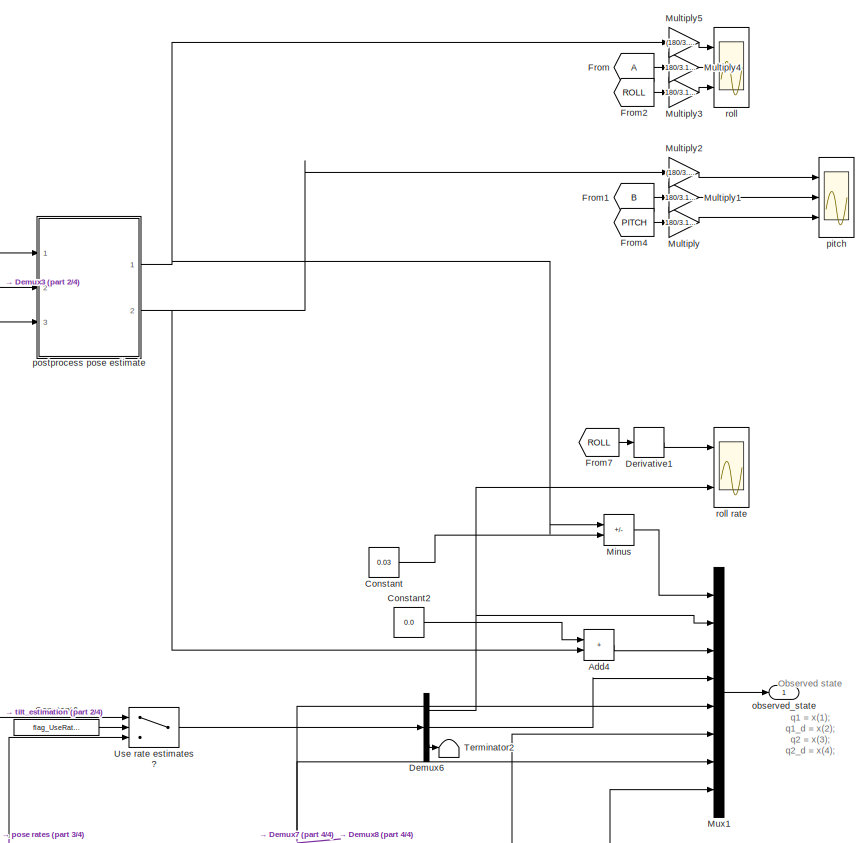
[diagram: measurement sim + state estimator - part 1/4, middle right region]
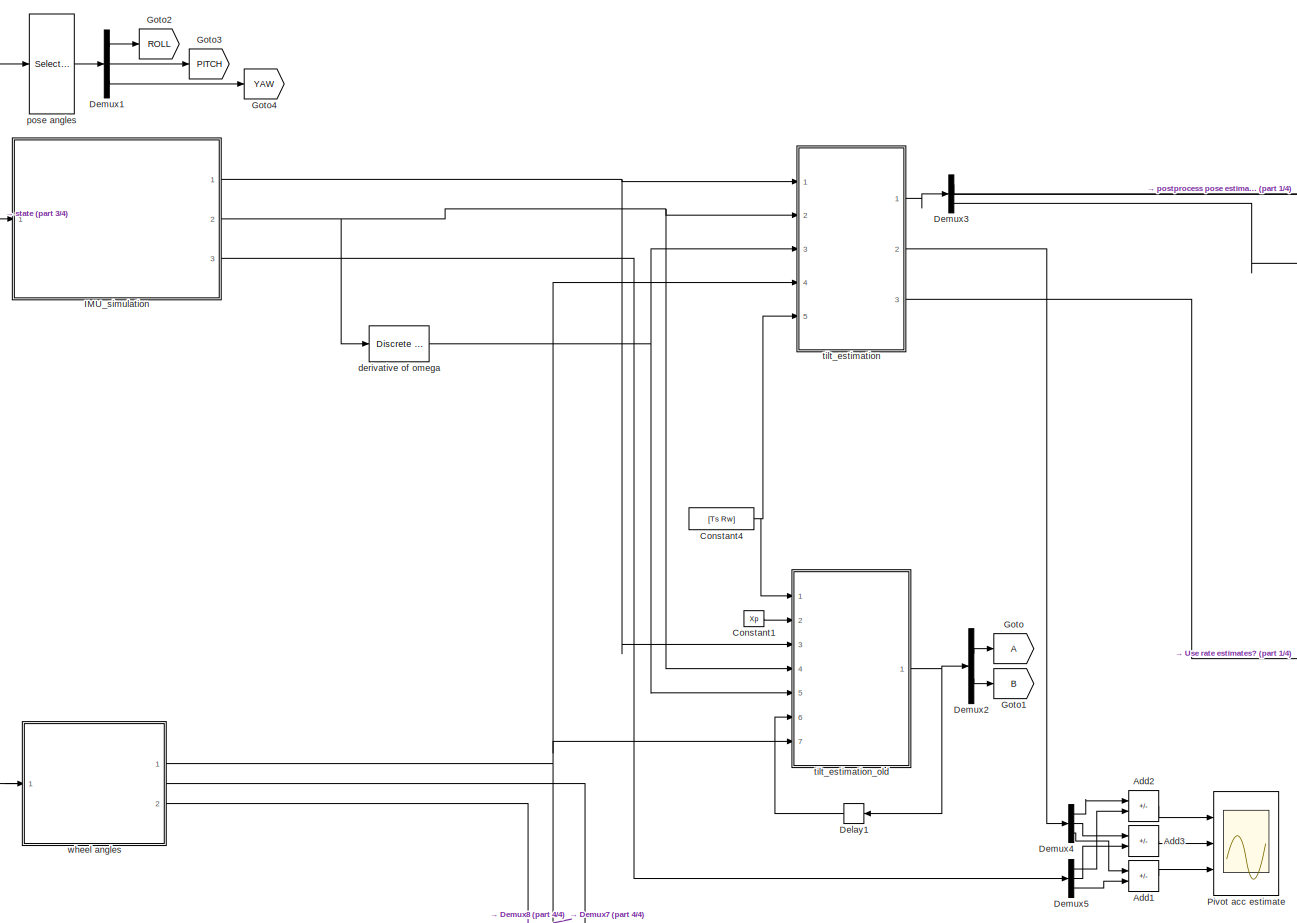
[diagram: measurement sim + state estimator - part 2/4, middle left region]
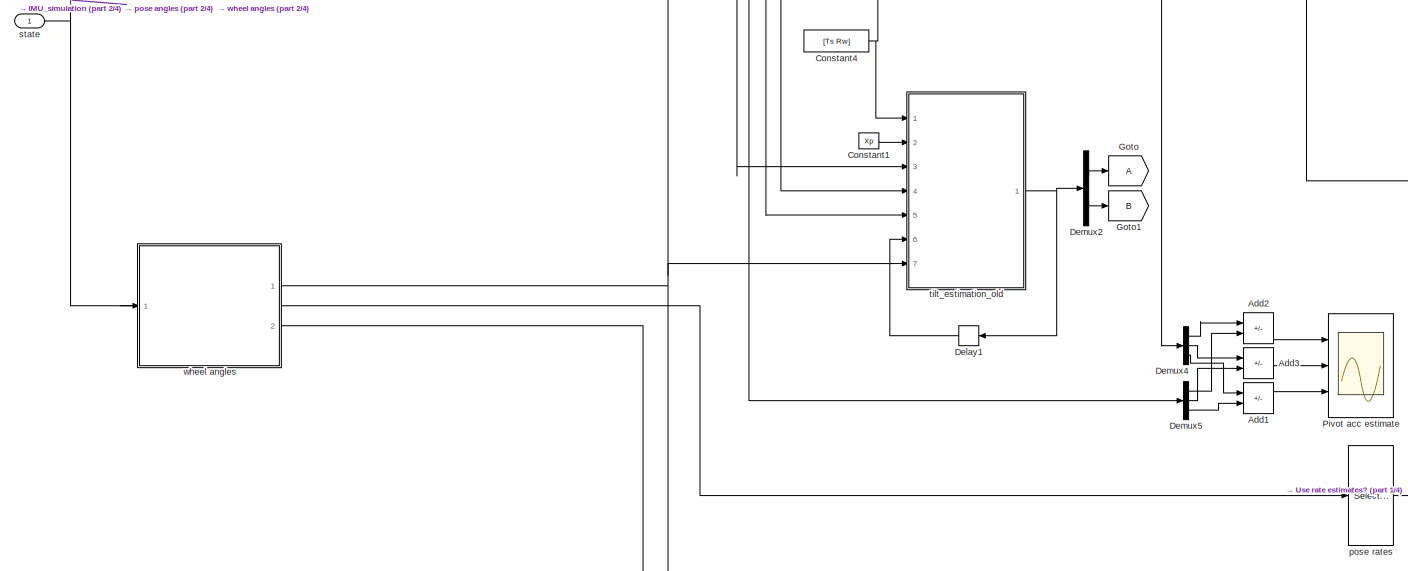
[diagram: measurement sim + state estimator - part 3/4, middle left region]
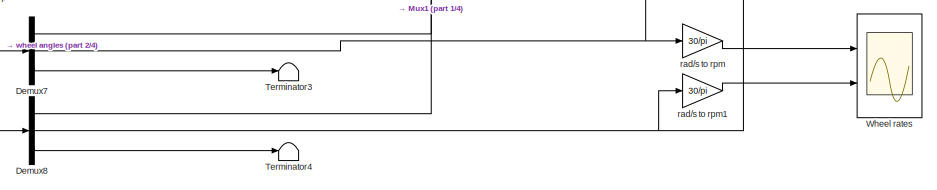
[diagram: measurement sim + state estimator - part 4/4, bottom right region]
BLOCK [SubSystem] measurement sim + state estimator
  NameLocation = top
  Ports = [1, 1]
  RequestExecContextInheritance = off
BLOCK [Sum] measurement sim + state estimator/Add1
  IconShape = rectangular
  Inputs = +-
  Ports = [2, 1]
BLOCK [Sum] measurement sim + state estimator/Add2
  IconShape = rectangular
  Inputs = +-
  Ports = [2, 1]
BLOCK [Sum] measurement sim + state estimator/Add3
  IconShape = rectangular
  Inputs = +-
  Ports = [2, 1]
BLOCK [Sum] measurement sim + state estimator/Add4
  IconShape = rectangular
  Ports = [2, 1]
BLOCK [Constant] measurement sim + state estimator/Constant
  Value = 0.03
BLOCK [Constant] measurement sim + state estimator/Constant1
  Value = Xp
BLOCK [Constant] measurement sim + state estimator/Constant2
  Value = 0.0
BLOCK [Constant] measurement sim + state estimator/Constant4
  Value = [Ts Rw]
BLOCK [Constant] measurement sim + state estimator/Constant6
  Value = flag_UseRateEst
BLOCK [Delay] measurement sim + state estimator/Delay1
  DelayLength = 1
  InitialCondition = [q1_0; q2_0]
  InputPortMap = u0
  NameLocation = top
  Ports = [1, 1]
  SampleTime = Ts
BLOCK [Demux] measurement sim + state estimator/Demux1
  Outputs = 3
  Ports = [1, 3]
BLOCK [Demux] measurement sim + state estimator/Demux2
  Outputs = 2
  Ports = [1, 2]
BLOCK [Demux] measurement sim + state estimator/Demux3
  Outputs = 3
  Ports = [1, 3]
BLOCK [Demux] measurement sim + state estimator/Demux4
  Outputs = 3
  Ports = [1, 3]
BLOCK [Demux] measurement sim + state estimator/Demux5
  Outputs = 3
  Ports = [1, 3]
BLOCK [Demux] measurement sim + state estimator/Demux6
  Outputs = 3
  Ports = [1, 3]
BLOCK [Demux] measurement sim + state estimator/Demux7
  Outputs = 3
  Ports = [1, 3]
BLOCK [Demux] measurement sim + state estimator/Demux8
  Outputs = 3
  Ports = [1, 3]
BLOCK [Derivative] measurement sim + state estimator/Derivative1
BLOCK [From] measurement sim + state estimator/From
BLOCK [From] measurement sim + state estimator/From1
  GotoTag = B
BLOCK [From] measurement sim + state estimator/From2
  GotoTag = ROLL
BLOCK [From] measurement sim + state estimator/From4
  GotoTag = PITCH
BLOCK [From] measurement sim + state estimator/From7
  GotoTag = ROLL
BLOCK [Goto] measurement sim + state estimator/Goto
BLOCK [Goto] measurement sim + state estimator/Goto1
  GotoTag = B
BLOCK [Goto] measurement sim + state estimator/Goto2
  GotoTag = ROLL
BLOCK [Goto] measurement sim + state estimator/Goto3
  GotoTag = PITCH
BLOCK [Goto] measurement sim + state estimator/Goto4
  GotoTag = YAW
BLOCK [SubSystem] measurement sim + state estimator/IMU_simulation
  Ports = [1, 3]
  RequestExecContextInheritance = off
BLOCK [Sum] measurement sim + state estimator/IMU_simulation/Add
  IconShape = rectangular
  Ports = [2, 1]
BLOCK [Sum] measurement sim + state estimator/IMU_simulation/Add1
  IconShape = rectangular
  Ports = [2, 1]
BLOCK [Constant] measurement sim + state estimator/IMU_simulation/Constant1
  Value = flag_UseAccNoise
BLOCK [Constant] measurement sim + state estimator/IMU_simulation/Constant2
  Value = Bp
BLOCK [Constant] measurement sim + state estimator/IMU_simulation/Constant3
  Value = flag_UseGyroNoise
BLOCK [Constant] measurement sim + state estimator/IMU_simulation/Constant4
  Value = [Ts Rw]
BLOCK [Demux] measurement sim + state estimator/IMU_simulation/Demux1
  Outputs = 2
  Ports = [1, 2]
BLOCK [Demux] measurement sim + state estimator/IMU_simulation/Demux2
  Outputs = 6
  Ports = [1, 6]
BLOCK [Derivative] measurement sim + state estimator/IMU_simulation/Derivative7
  CoefficientInTFapproximation = 0.00001
BLOCK [Derivative] measurement sim + state estimator/IMU_simulation/Derivative8
  CoefficientInTFapproximation = 0.00001
BLOCK [SubSystem] measurement sim + state estimator/IMU_simulation/IMU measurements // body rates
  ErrorFcn = Stateflow.Translate.translate
  PermitHierarchicalResolution = ExplicitOnly
  Ports = [3, 3]
  RequestExecContextInheritance = off
  SFBlockType = MATLAB Function
  TreatAsAtomicUnit = on
BLOCK [Demux] measurement sim + state estimator/IMU_simulation/IMU measurements // body rates/ Demux 
  Outputs = 1
  Ports = [1, 1]
BLOCK [S-Function] measurement sim + state estimator/IMU_simulation/IMU measurements // body rates/ SFunction 
  EnableBusSupport = on
  FunctionName = sf_sfun
  PortCounts = [3 4]
  Ports = [3, 4]
  SFcnIsStateOwnerBlock = off
  SFunctionDeploymentMode = off
  Tag = Stateflow S-Function 1
BLOCK [Terminator] measurement sim + state estimator/IMU_simulation/IMU measurements // body rates/ Terminator 
BLOCK [Inport] measurement sim + state estimator/IMU_simulation/IMU measurements // body rates/Bp
  Port = 3
BLOCK [Outport] measurement sim + state estimator/IMU_simulation/IMU measurements // body rates/Mvec
  VectorParamsAs1DForOutWhenUnconnected = off
BLOCK [Outport] measurement sim + state estimator/IMU_simulation/IMU measurements // body rates/RT
  Port = 3
BLOCK [Inport] measurement sim + state estimator/IMU_simulation/IMU measurements // body rates/acc_pivot
  Port = 2
BLOCK [Outport] measurement sim + state estimator/IMU_simulation/IMU measurements // body rates/omega
  Port = 2
  VectorParamsAs1DForOutWhenUnconnected = off
BLOCK [Inport] measurement sim + state estimator/IMU_simulation/IMU measurements // body rates/state_full
BLOCK [Mux] measurement sim + state estimator/IMU_simulation/Mux1
  DisplayOption = bar
  Inputs = 2
  Ports = [2, 1]
BLOCK [Mux] measurement sim + state estimator/IMU_simulation/Mux2
  DisplayOption = bar
  Inputs = 9
  Ports = [9, 1]
BLOCK [Outport] measurement sim + state estimator/IMU_simulation/Mvec
BLOCK [Product] measurement sim + state estimator/IMU_simulation/Product
  Multiplication = Matrix(*)
  Ports = [2, 1]
BLOCK [Product] measurement sim + state estimator/IMU_simulation/Product1
  Multiplication = Matrix(*)
  Ports = [2, 1]
BLOCK [Product] measurement sim + state estimator/IMU_simulation/Product2
  Multiplication = Matrix(*)
  Ports = [2, 1]
BLOCK [Switch] measurement sim + state estimator/IMU_simulation/Use pivot acc?
  Criteria = u2 > Threshold
  InputSameDT = off
  NameLocation = top
  SaturateOnIntegerOverflow = off
BLOCK [Switch] measurement sim + state estimator/IMU_simulation/Use pivot acc?1
  Criteria = u2 > Threshold
  InputSameDT = off
  NameLocation = top
  SaturateOnIntegerOverflow = off
BLOCK [ZeroOrderHold] measurement sim + state estimator/IMU_simulation/Zero-Order Hold1
  SampleTime = Ts
BLOCK [ZeroOrderHold] measurement sim + state estimator/IMU_simulation/Zero-Order Hold2
  SampleTime = Ts
BLOCK [ZeroOrderHold] measurement sim + state estimator/IMU_simulation/Zero-Order Hold3
  SampleTime = Ts
BLOCK [RandomNumber] measurement sim + state estimator/IMU_simulation/acc noise
  Mean = zeros(1,12)
  SampleTime = Ts
  Seed = 1:12
  Variance = variance_IMUacc*ones(1,12)
BLOCK [Scope] measurement sim + state estimator/IMU_simulation/acc pivot
  Floating = off
  NumInputPorts = 3
  Ports = [3]
  ScopeSpecificationString = Simulink.scopes.TimeScopeBlockCfg('CurrentConfiguration', extmgr.ConfigurationSet(extmgr.Configuration('Core','General UI',true),extmgr.Configuration('Core','Source UI',true),extmgr.Configuration('Sources','WiredSimulink',true,'DataLoggingVariableName','ScopeData1'),extmgr.Configuration('Visuals','Time Domain',true,'SerializedDisplays',{struct('MinYLimReal','-0.85329','MaxYLimReal','0.67119','YLab...<+1720ch>
BLOCK [Outport] measurement sim + state estimator/IMU_simulation/acc_pivot
  Port = 3
BLOCK [Selector] measurement sim + state estimator/IMU_simulation/body pose
  IndexOptions = Index vector (dialog)
  Indices = [1 2 3 4 5 6]
  InputPortWidth = 14
  OutputSizes = 1
  Ports = [1, 1]
BLOCK [Selector] measurement sim + state estimator/IMU_simulation/contact point vel
  IndexOptions = Index vector (dialog)
  Indices = [13, 14]
  InputPortWidth = 14
  OutputSizes = 1
  Ports = [1, 1]
BLOCK [RandomNumber] measurement sim + state estimator/IMU_simulation/gyro noise
  Mean = mean_IMUgyro*[1 1 1]
  SampleTime = Ts
  Seed = [iterSeed+10 iterSeed+11 iterSeed+12]
  Variance = (variance_IMUgyro)*[1 1 1]
BLOCK [Outport] measurement sim + state estimator/IMU_simulation/omega
  Port = 2
BLOCK [SubSystem] measurement sim + state estimator/IMU_simulation/pivot acc inertia frame
  ErrorFcn = Stateflow.Translate.translate
  PermitHierarchicalResolution = ExplicitOnly
  Ports = [3, 4]
  RequestExecContextInheritance = off
  SFBlockType = MATLAB Function
  TreatAsAtomicUnit = on
BLOCK [Demux] measurement sim + state estimator/IMU_simulation/pivot acc inertia frame/ Demux 
  Outputs = 1
  Ports = [1, 1]
BLOCK [S-Function] measurement sim + state estimator/IMU_simulation/pivot acc inertia frame/ SFunction 
  EnableBusSupport = on
  FunctionName = sf_sfun
  PortCounts = [3 5]
  Ports = [3, 5]
  SFcnIsStateOwnerBlock = off
  SFunctionDeploymentMode = off
  Tag = Stateflow S-Function 2
BLOCK [Terminator] measurement sim + state estimator/IMU_simulation/pivot acc inertia frame/ Terminator 
BLOCK [Outport] measurement sim + state estimator/IMU_simulation/pivot acc inertia frame/a_c
  Port = 2
BLOCK [Outport] measurement sim + state estimator/IMU_simulation/pivot acc inertia frame/a_w2cp1
  Port = 3
BLOCK [Outport] measurement sim + state estimator/IMU_simulation/pivot acc inertia frame/a_w2cp2
  Port = 4
BLOCK [Inport] measurement sim + state estimator/IMU_simulation/pivot acc inertia frame/acc_cp
  Port = 2
BLOCK [Outport] measurement sim + state estimator/IMU_simulation/pivot acc inertia frame/acc_pivot
  VectorParamsAs1DForOutWhenUnconnected = off
BLOCK [Inport] measurement sim + state estimator/IMU_simulation/pivot acc inertia frame/params
  Port = 3
BLOCK [Inport] measurement sim + state estimator/IMU_simulation/pivot acc inertia frame/state_full
BLOCK [Derivative] measurement sim + state estimator/IMU_simulation/q1_dd
  CoefficientInTFapproximation = 0.0000001
  NameLocation = right
BLOCK [Derivative] measurement sim + state estimator/IMU_simulation/q2_dd
  CoefficientInTFapproximation = 0.000001
  NameLocation = right
BLOCK [Derivative] measurement sim + state estimator/IMU_simulation/q3_dd
  CoefficientInTFapproximation = 0.000001
  NameLocation = right
BLOCK [Inport] measurement sim + state estimator/IMU_simulation/state
BLOCK [Sum] measurement sim + state estimator/Minus
  IconShape = rectangular
  Inputs = +-
  Ports = [2, 1]
BLOCK [Gain] measurement sim + state estimator/Multiply
  Gain = 180/3.14159265
BLOCK [Gain] measurement sim + state estimator/Multiply1
  Gain = 180/3.14159265
BLOCK [Gain] measurement sim + state estimator/Multiply2
  Gain = (180/3.14159265)
BLOCK [Gain] measurement sim + state estimator/Multiply3
  Gain = 180/3.14159265
BLOCK [Gain] measurement sim + state estimator/Multiply4
  Gain = 180/3.14159265
BLOCK [Gain] measurement sim + state estimator/Multiply5
  Gain = (180/3.14159265)
BLOCK [Mux] measurement sim + state estimator/Mux1
  DisplayOption = bar
  Inputs = 8
  NameLocation = top
  Ports = [8, 1]
BLOCK [Scope] measurement sim + state estimator/Pivot acc estimate
  Floating = off
  NumInputPorts = 3
  Ports = [3]
  ScopeSpecificationString = Simulink.scopes.TimeScopeBlockCfg('CurrentConfiguration', extmgr.ConfigurationSet(extmgr.Configuration('Core','General UI',true),extmgr.Configuration('Core','Source UI',true),extmgr.Configuration('Sources','WiredSimulink',true,'DataLoggingVariableName','ScopeData1'),extmgr.Configuration('Visuals','Time Domain',true,'SerializedDisplays',{struct('MinYLimReal','-36.33733','MaxYLimReal','60.66028','YL...<+1452ch>
BLOCK [Terminator] measurement sim + state estimator/Terminator2
BLOCK [Terminator] measurement sim + state estimator/Terminator3
BLOCK [Terminator] measurement sim + state estimator/Terminator4
BLOCK [Switch] measurement sim + state estimator/Use rate estimates?
  Criteria = u2 > Threshold
  InputSameDT = off
  NameLocation = top
  SaturateOnIntegerOverflow = off
BLOCK [Scope] measurement sim + state estimator/Wheel rates
  Floating = off
  NumInputPorts = 2
  Ports = [2]
  ScopeSpecificationString = Simulink.scopes.TimeScopeBlockCfg('CurrentConfiguration', extmgr.ConfigurationSet(extmgr.Configuration('Core','General UI',true),extmgr.Configuration('Core','Source UI',true),extmgr.Configuration('Sources','WiredSimulink',true,'DataLoggingVariableName','ScopeData1'),extmgr.Configuration('Visuals','Time Domain',true,'SerializedDisplays',{struct('MinYLimReal','-2186.36534','MaxYLimReal','2465.1517',...<+1474ch>
BLOCK [Reference] measurement sim + state estimator/derivative of omega  REF=simulink/Discrete/Discrete Derivative
  Ports = [1, 1]
  SourceBlock = simulink/Discrete/Discrete Derivative
  SourceProductBaseCode = SL
  SourceType = Discrete Derivative
BLOCK [Outport] measurement sim + state estimator/observed_state
  NameLocation = top
BLOCK [Scope] measurement sim + state estimator/pitch
  Floating = off
  NumInputPorts = 3
  Ports = [3]
  ScopeSpecificationString = Simulink.scopes.TimeScopeBlockCfg('CurrentConfiguration', extmgr.ConfigurationSet(extmgr.Configuration('Core','General UI',true),extmgr.Configuration('Core','Source UI',true),extmgr.Configuration('Sources','WiredSimulink',true,'DataLoggingVariableName','ScopeData3'),extmgr.Configuration('Visuals','Time Domain',true,'SerializedDisplays',{struct('MinYLimReal','-8.66311','MaxYLimReal','7.56274','YLab...<+1460ch>
BLOCK [Selector] measurement sim + state estimator/pose angles
  IndexOptions = Index vector (dialog)
  Indices = [1,3, 5]
  InputPortWidth = 14
  OutputSizes = 1
  Ports = [1, 1]
BLOCK [Selector] measurement sim + state estimator/pose rates
  IndexOptions = Index vector (dialog)
  Indices = [2,4,6]
  InputPortWidth = 14
  OutputSizes = 1
  Ports = [1, 1]
BLOCK [SubSystem] measurement sim + state estimator/postprocess pose estimate
  Ports = [3, 2]
  RequestExecContextInheritance = off
BLOCK [Switch] measurement sim + state estimator/postprocess pose estimate/Add pitch bias?
  Criteria = u2 > Threshold
  InputSameDT = off
  NameLocation = top
  SaturateOnIntegerOverflow = off
BLOCK [Switch] measurement sim + state estimator/postprocess pose estimate/Add roll bias?
  Criteria = u2 > Threshold
  InputSameDT = off
  NameLocation = top
  SaturateOnIntegerOverflow = off
BLOCK [Constant] measurement sim + state estimator/postprocess pose estimate/Constant
  Value = roll_bias
BLOCK [Constant] measurement sim + state estimator/postprocess pose estimate/Constant1
  Value = pitch_bias
BLOCK [Constant] measurement sim + state estimator/postprocess pose estimate/Constant2
  NameLocation = top
  Value = [flag_UseRollEst]
BLOCK [Constant] measurement sim + state estimator/postprocess pose estimate/Constant3
  NameLocation = top
  Value = [flag_UsePitchEst]
BLOCK [Constant] measurement sim + state estimator/postprocess pose estimate/Constant4
  NameLocation = top
  Value = [flag_AddPitchBias]
BLOCK [Constant] measurement sim + state estimator/postprocess pose estimate/Constant5
  Value = flag_UseYawEst
BLOCK [Constant] measurement sim + state estimator/postprocess pose estimate/Constant7
  NameLocation = top
  Value = [flag_AddRollBias]
BLOCK [From] measurement sim + state estimator/postprocess pose estimate/From3
  GotoTag = ROLL
BLOCK [From] measurement sim + state estimator/postprocess pose estimate/From5
  GotoTag = PITCH
BLOCK [From] measurement sim + state estimator/postprocess pose estimate/From6
  GotoTag = YAW
BLOCK [Inport] measurement sim + state estimator/postprocess pose estimate/In1
BLOCK [Inport] measurement sim + state estimator/postprocess pose estimate/In2
  Port = 2
BLOCK [Inport] measurement sim + state estimator/postprocess pose estimate/In3
  Port = 3
BLOCK [Outport] measurement sim + state estimator/postprocess pose estimate/Out1
BLOCK [Outport] measurement sim + state estimator/postprocess pose estimate/Out2
  Port = 2
BLOCK [Sum] measurement sim + state estimator/postprocess pose estimate/Sum
  IconShape = rectangular
  Inputs = |++
  Ports = [2, 1]
BLOCK [Sum] measurement sim + state estimator/postprocess pose estimate/Sum1
  IconShape = rectangular
  Inputs = |++
  Ports = [2, 1]
BLOCK [Terminator] measurement sim + state estimator/postprocess pose estimate/Terminator1
BLOCK [Switch] measurement sim + state estimator/postprocess pose estimate/Use pitch estimate?
  Criteria = u2 > Threshold
  InputSameDT = off
  NameLocation = top
  SaturateOnIntegerOverflow = off
BLOCK [Switch] measurement sim + state estimator/postprocess pose estimate/Use roll estimate?
  Criteria = u2 > Threshold
  InputSameDT = off
  NameLocation = top
  SaturateOnIntegerOverflow = off
BLOCK [Switch] measurement sim + state estimator/postprocess pose estimate/Use yaw estimate?
  Criteria = u2 > Threshold
  InputSameDT = off
  NameLocation = top
  SaturateOnIntegerOverflow = off
BLOCK [Gain] measurement sim + state estimator/rad//s to rpm
  Gain = 30/pi
  NameLocation = top
  OutDataTypeStr = Inherit: Same as input
  ParamDataTypeStr = Inherit: Same as input
  SaturateOnIntegerOverflow = on
BLOCK [Gain] measurement sim + state estimator/rad//s to rpm1
  Gain = 30/pi
  NameLocation = top
  OutDataTypeStr = Inherit: Same as input
  ParamDataTypeStr = Inherit: Same as input
  SaturateOnIntegerOverflow = on
BLOCK [Scope] measurement sim + state estimator/roll
  Floating = off
  NumInputPorts = 3
  Ports = [3]
  ScopeSpecificationString = Simulink.scopes.TimeScopeBlockCfg('CurrentConfiguration', extmgr.ConfigurationSet(extmgr.Configuration('Core','General UI',true),extmgr.Configuration('Core','Source UI',true),extmgr.Configuration('Sources','WiredSimulink',true,'DataLoggingVariableName','ScopeData2'),extmgr.Configuration('Visuals','Time Domain',true,'SerializedDisplays',{struct('MinYLimReal','1.87048','MaxYLimReal','21.57476','YLab...<+1604ch>
BLOCK [Scope] measurement sim + state estimator/roll rate
  Floating = off
  NumInputPorts = 3
  Ports = [3]
  ScopeSpecificationString = Simulink.scopes.TimeScopeBlockCfg('CurrentConfiguration', extmgr.ConfigurationSet(extmgr.Configuration('Core','General UI',true),extmgr.Configuration('Core','Source UI',true),extmgr.Configuration('Sources','WiredSimulink',true,'DataLoggingVariableName','ScopeData1'),extmgr.Configuration('Visuals','Time Domain',true,'SerializedDisplays',{struct('MinYLimReal','-1.34415','MaxYLimReal','2.69371','YLab...<+1462ch>
BLOCK [Inport] measurement sim + state estimator/state
BLOCK [SubSystem] measurement sim + state estimator/tilt_estimation
  Ports = [5, 3]
  RequestExecContextInheritance = off
BLOCK [Constant] measurement sim + state estimator/tilt_estimation/Constant1
  Value = [0;  0; 0]
BLOCK [Constant] measurement sim + state estimator/tilt_estimation/Constant2
  Value = flag_UsePivotAcc
BLOCK [Constant] measurement sim + state estimator/tilt_estimation/Constant4
  Value = Xp
BLOCK [Delay] measurement sim + state estimator/tilt_estimation/Delay1
  DelayLength = 1
  InitialCondition = [q1_0; q2_0]
  InputPortMap = u0
  NameLocation = top
  Ports = [1, 1]
  SampleTime = Ts
BLOCK [DiscreteIntegrator] measurement sim + state estimator/tilt_estimation/Discrete-Time Integrator
  ICPrevOutput = DiscIntNeverNeededParam
  ICPrevScaledInput = DiscIntNeverNeededParam
  InitialConditionSetting = Auto
  Ports = [1, 1]
  SampleTime = -1
BLOCK [Inport] measurement sim + state estimator/tilt_estimation/Mvec
BLOCK [Selector] measurement sim + state estimator/tilt_estimation/Select yaw_rate
  IndexOptions = Index vector (dialog)
  Indices = [3]
  InputPortWidth = 3
  OutputSizes = 1
  Ports = [1, 1]
BLOCK [Switch] measurement sim + state estimator/tilt_estimation/Use pivot acc?
  Criteria = u2 > Threshold
  InputSameDT = off
  NameLocation = top
  SaturateOnIntegerOverflow = off
BLOCK [Concatenate] measurement sim + state estimator/tilt_estimation/Vector Concatenate
  Ports = [2, 1]
BLOCK [Outport] measurement sim + state estimator/tilt_estimation/acc_pivot_est
  Port = 2
BLOCK [SubSystem] measurement sim + state estimator/tilt_estimation/body_rate_in_Euler_coords
  ErrorFcn = Stateflow.Translate.translate
  PermitHierarchicalResolution = ExplicitOnly
  Ports = [2, 1]
  RequestExecContextInheritance = off
  SFBlockType = MATLAB Function
  TreatAsAtomicUnit = on
BLOCK [Demux] measurement sim + state estimator/tilt_estimation/body_rate_in_Euler_coords/ Demux 
  Outputs = 1
  Ports = [1, 1]
BLOCK [S-Function] measurement sim + state estimator/tilt_estimation/body_rate_in_Euler_coords/ SFunction 
  EnableBusSupport = on
  FunctionName = sf_sfun
  PortCounts = [2 2]
  Ports = [2, 2]
  SFcnIsStateOwnerBlock = off
  SFunctionDeploymentMode = off
  Tag = Stateflow S-Function 3
BLOCK [Terminator] measurement sim + state estimator/tilt_estimation/body_rate_in_Euler_coords/ Terminator 
BLOCK [Inport] measurement sim + state estimator/tilt_estimation/body_rate_in_Euler_coords/omega
BLOCK [Outport] measurement sim + state estimator/tilt_estimation/body_rate_in_Euler_coords/pose_est_d
  VectorParamsAs1DForOutWhenUnconnected = off
BLOCK [Inport] measurement sim + state estimator/tilt_estimation/body_rate_in_Euler_coords/pose_est_prev
  Port = 2
BLOCK [SubSystem] measurement sim + state estimator/tilt_estimation/body_rate_in_Euler_coords1
  ErrorFcn = Stateflow.Translate.translate
  PermitHierarchicalResolution = ExplicitOnly
  Ports = [2, 1]
  RequestExecContextInheritance = off
  SFBlockType = MATLAB Function
  TreatAsAtomicUnit = on
BLOCK [Demux] measurement sim + state estimator/tilt_estimation/body_rate_in_Euler_coords1/ Demux 
  Outputs = 1
  Ports = [1, 1]
BLOCK [S-Function] measurement sim + state estimator/tilt_estimation/body_rate_in_Euler_coords1/ SFunction 
  EnableBusSupport = on
  FunctionName = sf_sfun
  PortCounts = [2 2]
  Ports = [2, 2]
  SFcnIsStateOwnerBlock = off
  SFunctionDeploymentMode = off
  Tag = Stateflow S-Function 9
BLOCK [Terminator] measurement sim + state estimator/tilt_estimation/body_rate_in_Euler_coords1/ Terminator 
BLOCK [Inport] measurement sim + state estimator/tilt_estimation/body_rate_in_Euler_coords1/omega
BLOCK [Outport] measurement sim + state estimator/tilt_estimation/body_rate_in_Euler_coords1/pose_est_dd
  VectorParamsAs1DForOutWhenUnconnected = off
BLOCK [Inport] measurement sim + state estimator/tilt_estimation/body_rate_in_Euler_coords1/pose_est_prev
  Port = 2
BLOCK [SubSystem] measurement sim + state estimator/tilt_estimation/estimate pivot acc.
  ErrorFcn = Stateflow.Translate.translate
  PermitHierarchicalResolution = ExplicitOnly
  Ports = [5, 1]
  RequestExecContextInheritance = off
  SFBlockType = MATLAB Function
  TreatAsAtomicUnit = on
BLOCK [Demux] measurement sim + state estimator/tilt_estimation/estimate pivot acc./ Demux 
  Outputs = 1
  Ports = [1, 1]
BLOCK [S-Function] measurement sim + state estimator/tilt_estimation/estimate pivot acc./ SFunction 
  EnableBusSupport = on
  FunctionName = sf_sfun
  PortCounts = [5 2]
  Ports = [5, 2]
  SFcnIsStateOwnerBlock = off
  SFunctionDeploymentMode = off
  Tag = Stateflow S-Function 7
BLOCK [Terminator] measurement sim + state estimator/tilt_estimation/estimate pivot acc./ Terminator 
BLOCK [Outport] measurement sim + state estimator/tilt_estimation/estimate pivot acc./acc_pivot_est
  VectorParamsAs1DForOutWhenUnconnected = off
BLOCK [Inport] measurement sim + state estimator/tilt_estimation/estimate pivot acc./params
  Port = 5
BLOCK [Inport] measurement sim + state estimator/tilt_estimation/estimate pivot acc./pose_est_d
  Port = 2
BLOCK [Inport] measurement sim + state estimator/tilt_estimation/estimate pivot acc./pose_est_dd
  Port = 3
BLOCK [Inport] measurement sim + state estimator/tilt_estimation/estimate pivot acc./pose_est_prev
BLOCK [Inport] measurement sim + state estimator/tilt_estimation/estimate pivot acc./theta_vec
  Port = 4
BLOCK [Inport] measurement sim + state estimator/tilt_estimation/omega
  Port = 2
BLOCK [Inport] measurement sim + state estimator/tilt_estimation/omega_d
  Port = 3
BLOCK [Inport] measurement sim + state estimator/tilt_estimation/params
  Port = 5
BLOCK [Outport] measurement sim + state estimator/tilt_estimation/pose_est
BLOCK [Outport] measurement sim + state estimator/tilt_estimation/pose_est_d
  Port = 3
BLOCK [Inport] measurement sim + state estimator/tilt_estimation/theta_vec
  Port = 4
  PortDimensions = 3
BLOCK [SubSystem] measurement sim + state estimator/tilt_estimation/tilt_estimation
  ErrorFcn = Stateflow.Translate.translate
  PermitHierarchicalResolution = ExplicitOnly
  Ports = [6, 1]
  RequestExecContextInheritance = off
  SFBlockType = MATLAB Function
  TreatAsAtomicUnit = on
BLOCK [Demux] measurement sim + state estimator/tilt_estimation/tilt_estimation/ Demux 
  Outputs = 1
  Ports = [1, 1]
BLOCK [S-Function] measurement sim + state estimator/tilt_estimation/tilt_estimation/ SFunction 
  EnableBusSupport = on
  FunctionName = sf_sfun
  PortCounts = [6 2]
  Ports = [6, 2]
  SFcnIsStateOwnerBlock = off
  SFunctionDeploymentMode = off
  Tag = Stateflow S-Function 8
BLOCK [Terminator] measurement sim + state estimator/tilt_estimation/tilt_estimation/ Terminator 
BLOCK [Inport] measurement sim + state estimator/tilt_estimation/tilt_estimation/Mvec
BLOCK [Inport] measurement sim + state estimator/tilt_estimation/tilt_estimation/Xp
  Port = 6
BLOCK [Inport] measurement sim + state estimator/tilt_estimation/tilt_estimation/acc_pivot
  Port = 4
BLOCK [Inport] measurement sim + state estimator/tilt_estimation/tilt_estimation/params
  Port = 5
BLOCK [Outport] measurement sim + state estimator/tilt_estimation/tilt_estimation/pose_est_12
  VectorParamsAs1DForOutWhenUnconnected = off
BLOCK [Inport] measurement sim + state estimator/tilt_estimation/tilt_estimation/pose_est_d
  Port = 3
BLOCK [Inport] measurement sim + state estimator/tilt_estimation/tilt_estimation/pose_est_prev
  Port = 2
BLOCK [SubSystem] measurement sim + state estimator/tilt_estimation_old
  ErrorFcn = Stateflow.Translate.translate
  PermitHierarchicalResolution = ExplicitOnly
  Ports = [7, 1]
  RequestExecContextInheritance = off
  SFBlockType = MATLAB Function
  TreatAsAtomicUnit = on
BLOCK [Demux] measurement sim + state estimator/tilt_estimation_old/ Demux 
  Outputs = 1
  Ports = [1, 1]
BLOCK [S-Function] measurement sim + state estimator/tilt_estimation_old/ SFunction 
  EnableBusSupport = on
  FunctionName = sf_sfun
  PortCounts = [7 2]
  Ports = [7, 2]
  SFcnIsStateOwnerBlock = off
  SFunctionDeploymentMode = off
  Tag = Stateflow S-Function 6
BLOCK [Terminator] measurement sim + state estimator/tilt_estimation_old/ Terminator 
BLOCK [Inport] measurement sim + state estimator/tilt_estimation_old/Mvec
  Port = 3
BLOCK [Inport] measurement sim + state estimator/tilt_estimation_old/Xp
  Port = 2
BLOCK [Inport] measurement sim + state estimator/tilt_estimation_old/omega
  Port = 4
BLOCK [Inport] measurement sim + state estimator/tilt_estimation_old/omega_d
  Port = 5
BLOCK [Inport] measurement sim + state estimator/tilt_estimation_old/params
BLOCK [Outport] measurement sim + state estimator/tilt_estimation_old/pose_est
  VectorParamsAs1DForOutWhenUnconnected = off
BLOCK [Inport] measurement sim + state estimator/tilt_estimation_old/pose_est_prev
  Port = 6
BLOCK [Inport] measurement sim + state estimator/tilt_estimation_old/theta_vec
  Port = 7
BLOCK [SubSystem] measurement sim + state estimator/wheel angles
  Ports = [1, 2]
  RequestExecContextInheritance = off
BLOCK [Demux] measurement sim + state estimator/wheel angles/Demux2
  Ports = [1, 4]
BLOCK [Reference] measurement sim + state estimator/wheel angles/Filtered Derivative (Discrete or Continuous)  REF=eeGeneralControl/Filtered Derivative
(Discrete or Continuous)
  Ports = [1, 1]
  SourceBlock = eeGeneralControl/Filtered Derivative\n(Discrete or Continuous)
  SourceProductBaseCode = PS
  SourceType = Filtered Derivative (Discrete or Continuous)
BLOCK [Reference] measurement sim + state estimator/wheel angles/Filtered Derivative (Discrete or Continuous)2  REF=eeGeneralControl/Filtered Derivative
(Discrete or Continuous)
  Ports = [1, 1]
  SourceBlock = eeGeneralControl/Filtered Derivative\n(Discrete or Continuous)
  SourceProductBaseCode = PS
  SourceType = Filtered Derivative (Discrete or Continuous)
BLOCK [Mux] measurement sim + state estimator/wheel angles/Mux2
  DisplayOption = bar
  Inputs = 3
  Ports = [3, 1]
BLOCK [Mux] measurement sim + state estimator/wheel angles/Mux3
  DisplayOption = bar
  Inputs = 3
  Ports = [3, 1]
BLOCK [ZeroOrderHold] measurement sim + state estimator/wheel angles/Zero-Order Hold1
  SampleTime = Ts
BLOCK [ZeroOrderHold] measurement sim + state estimator/wheel angles/Zero-Order Hold2
  SampleTime = Ts
BLOCK [ZeroOrderHold] measurement sim + state estimator/wheel angles/Zero-Order Hold3
  SampleTime = Ts
BLOCK [ZeroOrderHold] measurement sim + state estimator/wheel angles/Zero-Order Hold4
  SampleTime = Ts
BLOCK [Selector] measurement sim + state estimator/wheel angles/encoder states
  IndexOptions = Index vector (dialog)
  Indices = [7, 8, 9, 10]
  InputPortWidth = 14
  NameLocation = top
  OutputSizes = 1
  Ports = [1, 1]
BLOCK [Outport] measurement sim + state estimator/wheel angles/gamma_vec
  Port = 2
BLOCK [Inport] measurement sim + state estimator/wheel angles/state
BLOCK [Outport] measurement sim + state estimator/wheel angles/theta_vec
BLOCK [Selector] pick flywheel rate
  IndexOptions = Index vector (dialog)
  Indices = [10]
  InputPortWidth = 14
  NameLocation = right
  OutputSizes = 1
  Ports = [1, 1]
BLOCK [SubSystem] reference
  Ports = [0, 1]
  RequestExecContextInheritance = off
BLOCK [Sum] reference/Add
  Inputs = |++
  Ports = [2, 1]
BLOCK [Sum] reference/Add1
  Inputs = |++
  Ports = [2, 1]
BLOCK [Reference] reference/Angle Conversion  REF=aerolibconvert2/Angle Conversion
  Ports = [1, 1]
  SourceBlock = aerolibconvert2/Angle Conversion
  SourceProductBaseCode = AE
  SourceType = Angle Conversion
BLOCK [Reference] reference/Angle Conversion6  REF=aerolibconvert2/Angle Conversion
  Ports = [1, 1]
  SourceBlock = aerolibconvert2/Angle Conversion
  SourceProductBaseCode = AE
  SourceType = Angle Conversion
BLOCK [Reference] reference/Angle Conversion7  REF=aerolibconvert2/Angle Conversion
  Ports = [1, 1]
  SourceBlock = aerolibconvert2/Angle Conversion
  SourceProductBaseCode = AE
  SourceType = Angle Conversion
BLOCK [Reference] reference/Angle Conversion8  REF=aerolibconvert2/Angle Conversion
  Ports = [1, 1]
  SourceBlock = aerolibconvert2/Angle Conversion
  SourceProductBaseCode = AE
  SourceType = Angle Conversion
BLOCK [Reference] reference/Angle Conversion9  REF=aerolibconvert2/Angle Conversion
  Ports = [1, 1]
  SourceBlock = aerolibconvert2/Angle Conversion
  SourceProductBaseCode = AE
  SourceType = Angle Conversion
BLOCK [Mux] reference/Mux1
  DisplayOption = bar
  Inputs = 8
  Ports = [8, 1]
BLOCK [Reference] reference/balancing reference  REF=SignalEditorBlockLib/Signal Editor
  Ports = [0, 2]
  SourceBlock = SignalEditorBlockLib/Signal Editor
  SourceProductBaseCode = SL
  SourceType = SignalEditor
  UserDataPersistent = on
BLOCK [Outport] reference/ref
ANNOTATION (root): State [1] q1 / alpha / roll [2] alpha_d [3] q2 / beta / pitch [4] beta_d [5] q3 / delta / yaw [6] delta_d [7] q4 / theta / wheel angle [8] theta_d [9] q5 / gamma / flywheel angle [10] gamma_d [11] x [12] y [13] x_dot [14] y_dot
ANNOTATION (root): feedback controller
ANNOTATION (root): reference [1] q1 / alpha / roll [2] q1_d [3] q2 / beta / pitch [4] q2_d [5] q4 / theta / wheel angle [6] q4_d [7] q5 / gamma / flywheel angle [8] q5_d
ANNOTATION (root): system disturbance
ANNOTATION Analyse controller tracking: reference [1] q1 / alpha / roll [2] q1_d [3] q2 / beta / pitch [4] q2_d [5] q4 / theta / wheel angle [6] q4_d [7] q5 / gamma / flywheel angle [8] q5_d
ANNOTATION LQR: Error [1] q1 / alpha / roll [2] q1_d [3] q2 / beta / pitch [4] q2_d [5] q4 / theta / wheel angle [6] q4_d [7] q5 / gamma / flywheel angle [8] q5_d
ANNOTATION animation: Simscape Animation Model
ANNOTATION measurement sim + state estimator: Observed state q1 = x(1); q1_d = x(2); q2 = x(3); q2_d = x(4); q4 = x(5); q4_d = x(6); q5 = x(7); q5_d = x(8);
ANNOTATION reference: Reference [1] q1 / alpha / roll [2] q1_d [3] q2 / beta / pitch [4] q2_d [5] q4 / theta / wheel angle [6] q4_d [7] q5 / gamma / flywheel angle [8] q5_d
LINE Add:1 -> LQR:1
LINE Analyse controller tracking/Mux1:1 -> Analyse controller tracking/analyse references:4
LINE Analyse controller tracking/Mux3:1 -> Analyse controller tracking/analyse references:2
LINE Analyse controller tracking/Mux:1 -> Analyse controller tracking/analyse references:1
NET Analyse controller tracking/observed_state_ref:1 -> Analyse controller tracking/pick q1 ref:1, Analyse controller tracking/pick q2 ref1:1, Analyse controller tracking/pick q4_d ref1:1, Analyse controller tracking/pick q4_d ref:1
LINE Analyse controller tracking/pick q1 ref:1 -> Analyse controller tracking/q1_ref:1
LINE Analyse controller tracking/pick q1:1 -> Analyse controller tracking/q1:1
LINE Analyse controller tracking/pick q2 ref1:1 -> Analyse controller tracking/q2_ref:1
LINE Analyse controller tracking/pick q4_d ref1:1 -> Analyse controller tracking/q4_d_ref1:1
LINE Analyse controller tracking/pick q4_d ref:1 -> Analyse controller tracking/q4_d_ref:1
LINE Analyse controller tracking/pick q4_d1:1 -> Analyse controller tracking/q2:1
LINE Analyse controller tracking/pick q4_d:1 -> Analyse controller tracking/q4_d:1
LINE Analyse controller tracking/q1:1 -> Analyse controller tracking/Mux:2
LINE Analyse controller tracking/q1_ref:1 -> Analyse controller tracking/Mux:1
LINE Analyse controller tracking/q2:1 -> Analyse controller tracking/Mux3:2
LINE Analyse controller tracking/q2_ref:1 -> Analyse controller tracking/Mux3:1
LINE Analyse controller tracking/q4_d:1 -> Analyse controller tracking/Mux1:2
LINE Analyse controller tracking/q4_d_ref1:1 -> Analyse controller tracking/Scope:1
LINE Analyse controller tracking/q4_d_ref:1 -> Analyse controller tracking/Mux1:1
NET Analyse controller tracking/state:1 -> Analyse controller tracking/pick q1:1, Analyse controller tracking/pick q4_d1:1, Analyse controller tracking/pick q4_d:1
LINE Control disturbance:1 -> Manual Switch:1
LINE Control disturbance:2 -> Manual Switch1:1
LINE Demux:1 -> Mux1:1
LINE Demux:2 -> Mux1:2
LINE Demux:3 -> Mux1:3
LINE Demux:4 -> Mux1:4
LINE Demux:5 -> Mux1:5
LINE Demux:6 -> Mux1:6
LINE Demux:7 -> Mux1:7
LINE Demux:8 -> Mux1:8
LINE Gain3:1 -> Wheel torque:1
LINE Gain7:1 -> Flywheel torque:1
LINE LQR/Constant6:1 -> LQR/Use rate estimates?:2
LINE LQR/Delay1:1 -> LQR/Use rate estimates?:1
NET LQR/Demux1:1 -> LQR/Discrete-Time Integrator:1, LQR/Gain2:1
NET LQR/Demux1:2 -> LQR/Discrete-Time Integrator2:1, LQR/Gain3:1
LINE LQR/Discrete-Time Integrator2:1 -> LQR/Sum:2
LINE LQR/Discrete-Time Integrator:1 -> LQR/Sum1:2
LINE LQR/Gain2:1 -> LQR/pose angles:2
LINE LQR/Gain3:1 -> LQR/pose angles:3
LINE LQR/Gain4:1 -> LQR/Sum1:1
LINE LQR/Gain:1 -> LQR/Sum:1
LINE LQR/Rate Transition1:1 -> LQR/Delay1:1
LINE LQR/Rate Transition2:1 -> LQR/Use rate estimates?:3
LINE LQR/Sum1:1 -> LQR/u_flywheel:1
LINE LQR/Sum:1 -> LQR/u_groundwheel:1
NET LQR/Use rate estimates?:1 -> LQR/Gain4:1, LQR/Gain:1, LQR/pick pose angles:1
NET LQR/e:1 -> LQR/Rate Transition1:1, LQR/Rate Transition2:1
LINE LQR/pick pose angles:1 -> LQR/Demux1:1
LINE LQR:1 -> Sum1:2
LINE LQR:2 -> Sum6:2
NET MATLAB Function:1 -> Gain7:1, Sum2:2
LINE Manual Switch1:1 -> Sum3:1
LINE Manual Switch:1 -> Sum2:1
LINE Mux1:1 -> Add:1
LINE Mux5:1 -> dynamics_ODE:1
LINE Saturation1:1 -> MATLAB Function:2
NET Saturation:1 -> Gain3:1, Sum3:2
LINE Sum1:1 -> Saturation:1
LINE Sum2:1 -> Mux5:2
LINE Sum3:1 -> Mux5:1
LINE Sum6:1 -> Saturation1:1
NET Zero:1 -> Manual Switch1:2, Manual Switch:2
LINE animation/Delay1:1 -> animation/Simulink-PS Converter1:1
LINE animation/Delay2:1 -> animation/Simulink-PS Converter4:1
LINE animation/Delay3:1 -> animation/Simulink-PS Converter6:1
LINE animation/Delay4:1 -> animation/Simulink-PS Converter2:1
LINE animation/Delay5:1 -> animation/Simulink-PS Converter5:1
LINE animation/Delay6:1 -> animation/Simulink-PS Converter7:1
LINE animation/Delay:1 -> animation/Simulink-PS Converter3:1
LINE animation/Demux1:1 -> animation/Delay2:1
LINE animation/Demux1:2 -> animation/Gain1:1
LINE animation/Demux1:3 -> animation/Gain:1
LINE animation/Demux1:4 -> animation/Gain3:1
LINE animation/Demux1:5 -> animation/Delay:1
LINE animation/Demux1:6 -> animation/Delay1:1
LINE animation/Demux1:7 -> animation/Delay4:1
LINE animation/Gain1:1 -> animation/Delay3:1
LINE animation/Gain3:1 -> animation/Delay6:1
LINE animation/Gain:1 -> animation/Delay5:1
LINE animation/state:1 -> animation/wheelbot state:1
LINE animation/wheelbot state:1 -> animation/Demux1:1
NET dynamics_ODE:1 -> Analyse controller tracking:2, animation:1, measurement sim + state estimator:1, pick flywheel rate:1
LINE feed-forward balancing pitch:1 -> Sum1:1
LINE feedforward standup torque:1 -> Sum6:3
LINE measurement sim + state estimator/Add1:1 -> measurement sim + state estimator/Pivot acc estimate:3
LINE measurement sim + state estimator/Add2:1 -> measurement sim + state estimator/Pivot acc estimate:1
LINE measurement sim + state estimator/Add3:1 -> measurement sim + state estimator/Pivot acc estimate:2
LINE measurement sim + state estimator/Add4:1 -> measurement sim + state estimator/Mux1:3
LINE measurement sim + state estimator/Constant1:1 -> measurement sim + state estimator/tilt_estimation_old:2
LINE measurement sim + state estimator/Constant2:1 -> measurement sim + state estimator/Add4:1
NET measurement sim + state estimator/Constant4:1 -> measurement sim + state estimator/tilt_estimation:5, measurement sim + state estimator/tilt_estimation_old:1
LINE measurement sim + state estimator/Constant6:1 -> measurement sim + state estimator/Use rate estimates?:2
LINE measurement sim + state estimator/Constant:1 -> measurement sim + state estimator/Minus:2
LINE measurement sim + state estimator/Delay1:1 -> measurement sim + state estimator/tilt_estimation_old:6
LINE measurement sim + state estimator/Demux1:1 -> measurement sim + state estimator/Goto2:1
LINE measurement sim + state estimator/Demux1:2 -> measurement sim + state estimator/Goto3:1
LINE measurement sim + state estimator/Demux1:3 -> measurement sim + state estimator/Goto4:1
LINE measurement sim + state estimator/Demux2:1 -> measurement sim + state estimator/Goto:1
LINE measurement sim + state estimator/Demux2:2 -> measurement sim + state estimator/Goto1:1
LINE measurement sim + state estimator/Demux3:1 -> measurement sim + state estimator/postprocess pose estimate:1
LINE measurement sim + state estimator/Demux3:2 -> measurement sim + state estimator/postprocess pose estimate:2
LINE measurement sim + state estimator/Demux3:3 -> measurement sim + state estimator/postprocess pose estimate:3
LINE measurement sim + state estimator/Demux4:1 -> measurement sim + state estimator/Add2:1
LINE measurement sim + state estimator/Demux4:2 -> measurement sim + state estimator/Add3:1
LINE measurement sim + state estimator/Demux4:3 -> measurement sim + state estimator/Add1:1
LINE measurement sim + state estimator/Demux5:1 -> measurement sim + state estimator/Add2:2
LINE measurement sim + state estimator/Demux5:2 -> measurement sim + state estimator/Add3:2
LINE measurement sim + state estimator/Demux5:3 -> measurement sim + state estimator/Add1:2
NET measurement sim + state estimator/Demux6:1 -> measurement sim + state estimator/Mux1:2, measurement sim + state estimator/roll rate:3
LINE measurement sim + state estimator/Demux6:2 -> measurement sim + state estimator/Mux1:4
LINE measurement sim + state estimator/Demux6:3 -> measurement sim + state estimator/Terminator2:1
LINE measurement sim + state estimator/Demux7:1 -> measurement sim + state estimator/Mux1:5
NET measurement sim + state estimator/Demux7:2 -> measurement sim + state estimator/Mux1:6, measurement sim + state estimator/rad//s to rpm:1
LINE measurement sim + state estimator/Demux7:3 -> measurement sim + state estimator/Terminator3:1
LINE measurement sim + state estimator/Demux8:1 -> measurement sim + state estimator/Mux1:7
NET measurement sim + state estimator/Demux8:2 -> measurement sim + state estimator/Mux1:8, measurement sim + state estimator/rad//s to rpm1:1
LINE measurement sim + state estimator/Demux8:3 -> measurement sim + state estimator/Terminator4:1
LINE measurement sim + state estimator/Derivative1:1 -> measurement sim + state estimator/roll rate:1
LINE measurement sim + state estimator/From1:1 -> measurement sim + state estimator/Multiply1:1
LINE measurement sim + state estimator/From2:1 -> measurement sim + state estimator/Multiply3:1
LINE measurement sim + state estimator/From4:1 -> measurement sim + state estimator/Multiply:1
LINE measurement sim + state estimator/From7:1 -> measurement sim + state estimator/Derivative1:1
LINE measurement sim + state estimator/From:1 -> measurement sim + state estimator/Multiply4:1
LINE measurement sim + state estimator/IMU_simulation/Add1:1 -> measurement sim + state estimator/IMU_simulation/Use pivot acc?1:1
LINE measurement sim + state estimator/IMU_simulation/Add:1 -> measurement sim + state estimator/IMU_simulation/Use pivot acc?:1
LINE measurement sim + state estimator/IMU_simulation/Constant1:1 -> measurement sim + state estimator/IMU_simulation/Use pivot acc?:2
LINE measurement sim + state estimator/IMU_simulation/Constant2:1 -> measurement sim + state estimator/IMU_simulation/IMU measurements // body rates:3
LINE measurement sim + state estimator/IMU_simulation/Constant3:1 -> measurement sim + state estimator/IMU_simulation/Use pivot acc?1:2
LINE measurement sim + state estimator/IMU_simulation/Constant4:1 -> measurement sim + state estimator/IMU_simulation/pivot acc inertia frame:3
LINE measurement sim + state estimator/IMU_simulation/Demux1:1 -> measurement sim + state estimator/IMU_simulation/Derivative7:1
LINE measurement sim + state estimator/IMU_simulation/Demux1:2 -> measurement sim + state estimator/IMU_simulation/Derivative8:1
LINE measurement sim + state estimator/IMU_simulation/Demux2:1 -> measurement sim + state estimator/IMU_simulation/Mux2:1
NET measurement sim + state estimator/IMU_simulation/Demux2:2 -> measurement sim + state estimator/IMU_simulation/Mux2:2, measurement sim + state estimator/IMU_simulation/q1_dd:1
LINE measurement sim + state estimator/IMU_simulation/Demux2:3 -> measurement sim + state estimator/IMU_simulation/Mux2:4
NET measurement sim + state estimator/IMU_simulation/Demux2:4 -> measurement sim + state estimator/IMU_simulation/Mux2:5, measurement sim + state estimator/IMU_simulation/q2_dd:1
LINE measurement sim + state estimator/IMU_simulation/Demux2:5 -> measurement sim + state estimator/IMU_simulation/Mux2:7
NET measurement sim + state estimator/IMU_simulation/Demux2:6 -> measurement sim + state estimator/IMU_simulation/Mux2:8, measurement sim + state estimator/IMU_simulation/q3_dd:1
LINE measurement sim + state estimator/IMU_simulation/Derivative7:1 -> measurement sim + state estimator/IMU_simulation/Mux1:1
LINE measurement sim + state estimator/IMU_simulation/Derivative8:1 -> measurement sim + state estimator/IMU_simulation/Mux1:2
NET measurement sim + state estimator/IMU_simulation/IMU measurements // body rates:1 -> measurement sim + state estimator/IMU_simulation/Add:1, measurement sim + state estimator/IMU_simulation/Use pivot acc?:3
NET measurement sim + state estimator/IMU_simulation/IMU measurements // body rates:2 -> measurement sim + state estimator/IMU_simulation/Add1:1, measurement sim + state estimator/IMU_simulation/Use pivot acc?1:3
NET measurement sim + state estimator/IMU_simulation/IMU measurements // body rates:3 -> measurement sim + state estimator/IMU_simulation/Product1:1, measurement sim + state estimator/IMU_simulation/Product2:1, measurement sim + state estimator/IMU_simulation/Product:1
LINE measurement sim + state estimator/IMU_simulation/Mux1:1 -> measurement sim + state estimator/IMU_simulation/pivot acc inertia frame:2
NET measurement sim + state estimator/IMU_simulation/Mux2:1 -> measurement sim + state estimator/IMU_simulation/IMU measurements // body rates:1, measurement sim + state estimator/IMU_simulation/pivot acc inertia frame:1
LINE measurement sim + state estimator/IMU_simulation/Product1:1 -> measurement sim + state estimator/IMU_simulation/acc pivot:2
LINE measurement sim + state estimator/IMU_simulation/Product2:1 -> measurement sim + state estimator/IMU_simulation/acc pivot:3
LINE measurement sim + state estimator/IMU_simulation/Product:1 -> measurement sim + state estimator/IMU_simulation/acc pivot:1
LINE measurement sim + state estimator/IMU_simulation/Use pivot acc?1:1 -> measurement sim + state estimator/IMU_simulation/Zero-Order Hold2:1
LINE measurement sim + state estimator/IMU_simulation/Use pivot acc?:1 -> measurement sim + state estimator/IMU_simulation/Zero-Order Hold1:1
LINE measurement sim + state estimator/IMU_simulation/Zero-Order Hold1:1 -> measurement sim + state estimator/IMU_simulation/Mvec:1
LINE measurement sim + state estimator/IMU_simulation/Zero-Order Hold2:1 -> measurement sim + state estimator/IMU_simulation/omega:1
LINE measurement sim + state estimator/IMU_simulation/Zero-Order Hold3:1 -> measurement sim + state estimator/IMU_simulation/acc_pivot:1
LINE measurement sim + state estimator/IMU_simulation/acc noise:1 -> measurement sim + state estimator/IMU_simulation/Add:2
LINE measurement sim + state estimator/IMU_simulation/body pose:1 -> measurement sim + state estimator/IMU_simulation/Demux2:1
LINE measurement sim + state estimator/IMU_simulation/contact point vel:1 -> measurement sim + state estimator/IMU_simulation/Demux1:1
LINE measurement sim + state estimator/IMU_simulation/gyro noise:1 -> measurement sim + state estimator/IMU_simulation/Add1:2
NET measurement sim + state estimator/IMU_simulation/pivot acc inertia frame:1 -> measurement sim + state estimator/IMU_simulation/IMU measurements // body rates:2, measurement sim + state estimator/IMU_simulation/Zero-Order Hold3:1
LINE measurement sim + state estimator/IMU_simulation/pivot acc inertia frame:2 -> measurement sim + state estimator/IMU_simulation/Product:2
LINE measurement sim + state estimator/IMU_simulation/pivot acc inertia frame:3 -> measurement sim + state estimator/IMU_simulation/Product1:2
LINE measurement sim + state estimator/IMU_simulation/pivot acc inertia frame:4 -> measurement sim + state estimator/IMU_simulation/Product2:2
LINE measurement sim + state estimator/IMU_simulation/q1_dd:1 -> measurement sim + state estimator/IMU_simulation/Mux2:3
LINE measurement sim + state estimator/IMU_simulation/q2_dd:1 -> measurement sim + state estimator/IMU_simulation/Mux2:6
LINE measurement sim + state estimator/IMU_simulation/q3_dd:1 -> measurement sim + state estimator/IMU_simulation/Mux2:9
NET measurement sim + state estimator/IMU_simulation/state:1 -> measurement sim + state estimator/IMU_simulation/body pose:1, measurement sim + state estimator/IMU_simulation/contact point vel:1
NET measurement sim + state estimator/IMU_simulation:1 -> measurement sim + state estimator/tilt_estimation:1, measurement sim + state estimator/tilt_estimation_old:3
NET measurement sim + state estimator/IMU_simulation:2 -> measurement sim + state estimator/derivative of omega:1, measurement sim + state estimator/tilt_estimation:2, measurement sim + state estimator/tilt_estimation_old:4
LINE measurement sim + state estimator/IMU_simulation:3 -> measurement sim + state estimator/Demux5:1
LINE measurement sim + state estimator/Minus:1 -> measurement sim + state estimator/Mux1:1
LINE measurement sim + state estimator/Multiply1:1 -> measurement sim + state estimator/pitch:2
LINE measurement sim + state estimator/Multiply2:1 -> measurement sim + state estimator/pitch:1
LINE measurement sim + state estimator/Multiply3:1 -> measurement sim + state estimator/roll:3
LINE measurement sim + state estimator/Multiply4:1 -> measurement sim + state estimator/roll:2
LINE measurement sim + state estimator/Multiply5:1 -> measurement sim + state estimator/roll:1
LINE measurement sim + state estimator/Multiply:1 -> measurement sim + state estimator/pitch:3
LINE measurement sim + state estimator/Mux1:1 -> measurement sim + state estimator/observed_state:1
LINE measurement sim + state estimator/Use rate estimates?:1 -> measurement sim + state estimator/Demux6:1
NET measurement sim + state estimator/derivative of omega:1 -> measurement sim + state estimator/tilt_estimation:3, measurement sim + state estimator/tilt_estimation_old:5
LINE measurement sim + state estimator/pose angles:1 -> measurement sim + state estimator/Demux1:1
LINE measurement sim + state estimator/pose rates:1 -> measurement sim + state estimator/Use rate estimates?:3
LINE measurement sim + state estimator/postprocess pose estimate/Add pitch bias?:1 -> measurement sim + state estimator/postprocess pose estimate/Out2:1
LINE measurement sim + state estimator/postprocess pose estimate/Add roll bias?:1 -> measurement sim + state estimator/postprocess pose estimate/Out1:1
LINE measurement sim + state estimator/postprocess pose estimate/Constant1:1 -> measurement sim + state estimator/postprocess pose estimate/Sum1:1
LINE measurement sim + state estimator/postprocess pose estimate/Constant2:1 -> measurement sim + state estimator/postprocess pose estimate/Use roll estimate?:2
LINE measurement sim + state estimator/postprocess pose estimate/Constant3:1 -> measurement sim + state estimator/postprocess pose estimate/Use pitch estimate?:2
LINE measurement sim + state estimator/postprocess pose estimate/Constant4:1 -> measurement sim + state estimator/postprocess pose estimate/Add pitch bias?:2
LINE measurement sim + state estimator/postprocess pose estimate/Constant5:1 -> measurement sim + state estimator/postprocess pose estimate/Use yaw estimate?:2
LINE measurement sim + state estimator/postprocess pose estimate/Constant7:1 -> measurement sim + state estimator/postprocess pose estimate/Add roll bias?:2
LINE measurement sim + state estimator/postprocess pose estimate/Constant:1 -> measurement sim + state estimator/postprocess pose estimate/Sum:1
LINE measurement sim + state estimator/postprocess pose estimate/From3:1 -> measurement sim + state estimator/postprocess pose estimate/Use roll estimate?:3
LINE measurement sim + state estimator/postprocess pose estimate/From5:1 -> measurement sim + state estimator/postprocess pose estimate/Use pitch estimate?:3
LINE measurement sim + state estimator/postprocess pose estimate/From6:1 -> measurement sim + state estimator/postprocess pose estimate/Use yaw estimate?:3
LINE measurement sim + state estimator/postprocess pose estimate/In1:1 -> measurement sim + state estimator/postprocess pose estimate/Use roll estimate?:1
LINE measurement sim + state estimator/postprocess pose estimate/In2:1 -> measurement sim + state estimator/postprocess pose estimate/Use pitch estimate?:1
LINE measurement sim + state estimator/postprocess pose estimate/In3:1 -> measurement sim + state estimator/postprocess pose estimate/Use yaw estimate?:1
LINE measurement sim + state estimator/postprocess pose estimate/Sum1:1 -> measurement sim + state estimator/postprocess pose estimate/Add pitch bias?:1
LINE measurement sim + state estimator/postprocess pose estimate/Sum:1 -> measurement sim + state estimator/postprocess pose estimate/Add roll bias?:1
NET measurement sim + state estimator/postprocess pose estimate/Use pitch estimate?:1 -> measurement sim + state estimator/postprocess pose estimate/Add pitch bias?:3, measurement sim + state estimator/postprocess pose estimate/Sum1:2
NET measurement sim + state estimator/postprocess pose estimate/Use roll estimate?:1 -> measurement sim + state estimator/postprocess pose estimate/Add roll bias?:3, measurement sim + state estimator/postprocess pose estimate/Sum:2
LINE measurement sim + state estimator/postprocess pose estimate/Use yaw estimate?:1 -> measurement sim + state estimator/postprocess pose estimate/Terminator1:1
NET measurement sim + state estimator/postprocess pose estimate:1 -> measurement sim + state estimator/Minus:1, measurement sim + state estimator/Multiply5:1
NET measurement sim + state estimator/postprocess pose estimate:2 -> measurement sim + state estimator/Add4:2, measurement sim + state estimator/Multiply2:1
LINE measurement sim + state estimator/rad//s to rpm1:1 -> measurement sim + state estimator/Wheel rates:2
LINE measurement sim + state estimator/rad//s to rpm:1 -> measurement sim + state estimator/Wheel rates:1
NET measurement sim + state estimator/state:1 -> measurement sim + state estimator/IMU_simulation:1, measurement sim + state estimator/pose angles:1, measurement sim + state estimator/pose rates:1, measurement sim + state estimator/wheel angles:1
LINE measurement sim + state estimator/tilt_estimation/Constant1:1 -> measurement sim + state estimator/tilt_estimation/Use pivot acc?:3
LINE measurement sim + state estimator/tilt_estimation/Constant2:1 -> measurement sim + state estimator/tilt_estimation/Use pivot acc?:2
LINE measurement sim + state estimator/tilt_estimation/Constant4:1 -> measurement sim + state estimator/tilt_estimation/tilt_estimation:6
NET measurement sim + state estimator/tilt_estimation/Delay1:1 -> measurement sim + state estimator/tilt_estimation/body_rate_in_Euler_coords1:2, measurement sim + state estimator/tilt_estimation/body_rate_in_Euler_coords:2, measurement sim + state estimator/tilt_estimation/estimate pivot acc.:1, measurement sim + state estimator/tilt_estimation/tilt_estimation:2
LINE measurement sim + state estimator/tilt_estimation/Discrete-Time Integrator:1 -> measurement sim + state estimator/tilt_estimation/Vector Concatenate:2
LINE measurement sim + state estimator/tilt_estimation/Mvec:1 -> measurement sim + state estimator/tilt_estimation/tilt_estimation:1
LINE measurement sim + state estimator/tilt_estimation/Select yaw_rate:1 -> measurement sim + state estimator/tilt_estimation/Discrete-Time Integrator:1
LINE measurement sim + state estimator/tilt_estimation/Use pivot acc?:1 -> measurement sim + state estimator/tilt_estimation/tilt_estimation:4
LINE measurement sim + state estimator/tilt_estimation/Vector Concatenate:1 -> measurement sim + state estimator/tilt_estimation/pose_est:1
LINE measurement sim + state estimator/tilt_estimation/body_rate_in_Euler_coords1:1 -> measurement sim + state estimator/tilt_estimation/estimate pivot acc.:3
NET measurement sim + state estimator/tilt_estimation/body_rate_in_Euler_coords:1 -> measurement sim + state estimator/tilt_estimation/Select yaw_rate:1, measurement sim + state estimator/tilt_estimation/estimate pivot acc.:2, measurement sim + state estimator/tilt_estimation/pose_est_d:1, measurement sim + state estimator/tilt_estimation/tilt_estimation:3
NET measurement sim + state estimator/tilt_estimation/estimate pivot acc.:1 -> measurement sim + state estimator/tilt_estimation/Use pivot acc?:1, measurement sim + state estimator/tilt_estimation/acc_pivot_est:1
LINE measurement sim + state estimator/tilt_estimation/omega:1 -> measurement sim + state estimator/tilt_estimation/body_rate_in_Euler_coords:1
LINE measurement sim + state estimator/tilt_estimation/omega_d:1 -> measurement sim + state estimator/tilt_estimation/body_rate_in_Euler_coords1:1
NET measurement sim + state estimator/tilt_estimation/params:1 -> measurement sim + state estimator/tilt_estimation/estimate pivot acc.:5, measurement sim + state estimator/tilt_estimation/tilt_estimation:5
LINE measurement sim + state estimator/tilt_estimation/theta_vec:1 -> measurement sim + state estimator/tilt_estimation/estimate pivot acc.:4
NET measurement sim + state estimator/tilt_estimation/tilt_estimation:1 -> measurement sim + state estimator/tilt_estimation/Delay1:1, measurement sim + state estimator/tilt_estimation/Vector Concatenate:1
LINE measurement sim + state estimator/tilt_estimation:1 -> measurement sim + state estimator/Demux3:1
LINE measurement sim + state estimator/tilt_estimation:2 -> measurement sim + state estimator/Demux4:1
LINE measurement sim + state estimator/tilt_estimation:3 -> measurement sim + state estimator/Use rate estimates?:1
NET measurement sim + state estimator/tilt_estimation_old:1 -> measurement sim + state estimator/Delay1:1, measurement sim + state estimator/Demux2:1
LINE measurement sim + state estimator/wheel angles/Demux2:1 -> measurement sim + state estimator/wheel angles/Zero-Order Hold2:1
LINE measurement sim + state estimator/wheel angles/Demux2:2 -> measurement sim + state estimator/wheel angles/Zero-Order Hold3:1
LINE measurement sim + state estimator/wheel angles/Demux2:3 -> measurement sim + state estimator/wheel angles/Zero-Order Hold1:1
LINE measurement sim + state estimator/wheel angles/Demux2:4 -> measurement sim + state estimator/wheel angles/Zero-Order Hold4:1
LINE measurement sim + state estimator/wheel angles/Filtered Derivative (Discrete or Continuous)2:1 -> measurement sim + state estimator/wheel angles/Mux2:3
LINE measurement sim + state estimator/wheel angles/Filtered Derivative (Discrete or Continuous):1 -> measurement sim + state estimator/wheel angles/Mux3:3
LINE measurement sim + state estimator/wheel angles/Mux2:1 -> measurement sim + state estimator/wheel angles/gamma_vec:1
LINE measurement sim + state estimator/wheel angles/Mux3:1 -> measurement sim + state estimator/wheel angles/theta_vec:1
LINE measurement sim + state estimator/wheel angles/Zero-Order Hold1:1 -> measurement sim + state estimator/wheel angles/Mux2:1
LINE measurement sim + state estimator/wheel angles/Zero-Order Hold2:1 -> measurement sim + state estimator/wheel angles/Mux3:1
NET measurement sim + state estimator/wheel angles/Zero-Order Hold3:1 -> measurement sim + state estimator/wheel angles/Filtered Derivative (Discrete or Continuous):1, measurement sim + state estimator/wheel angles/Mux3:2
NET measurement sim + state estimator/wheel angles/Zero-Order Hold4:1 -> measurement sim + state estimator/wheel angles/Filtered Derivative (Discrete or Continuous)2:1, measurement sim + state estimator/wheel angles/Mux2:2
LINE measurement sim + state estimator/wheel angles/encoder states:1 -> measurement sim + state estimator/wheel angles/Demux2:1
LINE measurement sim + state estimator/wheel angles/state:1 -> measurement sim + state estimator/wheel angles/encoder states:1
NET measurement sim + state estimator/wheel angles:1 -> measurement sim + state estimator/Demux7:1, measurement sim + state estimator/tilt_estimation:4, measurement sim + state estimator/tilt_estimation_old:7
LINE measurement sim + state estimator/wheel angles:2 -> measurement sim + state estimator/Demux8:1
LINE measurement sim + state estimator:1 -> Add:2
LINE pick flywheel rate:1 -> MATLAB Function:1
LINE reference/Add1:1 -> reference/Angle Conversion9:1
LINE reference/Add:1 -> reference/Angle Conversion7:1
LINE reference/Angle Conversion6:1 -> reference/Add:1
LINE reference/Angle Conversion7:1 -> reference/Mux1:1
LINE reference/Angle Conversion8:1 -> reference/Add1:1
LINE reference/Angle Conversion9:1 -> reference/Mux1:3
LINE reference/Angle Conversion:1 -> reference/ref:1
LINE reference/Mux1:1 -> reference/Angle Conversion:1
LINE reference/balancing reference:1 -> reference/Angle Conversion6:1
NET reference:1 -> Analyse controller tracking:1, Demux:1, feed-forward balancing pitch:1
PNET net1: animation/Chasis translation1:LConn1 -- animation/Revolute Joint1:LConn1 -- animation/Rigid Transform3:RConn1
PLINE animation/Chasis translation1:RConn1 -- animation/Revolute Joint2:LConn1
PNET net2: animation/Chasis translation2:LConn1 -- animation/Chasis translation:RConn1 -- animation/Chasis:RConn1 -- animation/Marker Chasis:LConn1
PLINE animation/Chasis translation2:RConn1 -- animation/Chasis translation3:LConn1
PLINE animation/Chasis translation3:RConn1 -- animation/Revolute Joint3:LConn1
PLINE animation/Chasis translation:LConn1 -- animation/Revolute Joint2:RConn1
PNET net3: animation/Flywheel:RConn1 -- animation/Marker Flywheel:LConn1 -- animation/Revolute Joint3:RConn1
PNET net4: animation/Ground Plane:RConn1 -- animation/Tiles:LConn1 -- animation/Transform Rack3:RConn1
PNET net5: animation/Ground-wheel:RConn1 -- animation/Marker Wheel:LConn1 -- animation/Revolute Joint1:RConn1
PNET net6: animation/Marker Chasis/Conn1:RConn1 -- animation/Marker Chasis/String7 (Graphic):RConn1 -- animation/Marker Chasis/Transform String Midpoint14:LConn1 -- animation/Marker Chasis/Transform String Midpoint1:LConn1
PLINE animation/Marker Chasis/String7 (Graphic)1:RConn1 -- animation/Marker Chasis/Transform String Midpoint1:RConn1
PLINE animation/Marker Chasis/String8 (Graphic):RConn1 -- animation/Marker Chasis/Transform String Midpoint2:RConn1
PLINE animation/Marker Chasis/Transform String Midpoint14:RConn1 -- animation/Marker Chasis/Transform String Midpoint2:LConn1
PNET net7: animation/Marker Flywheel/Conn1:RConn1 -- animation/Marker Flywheel/String1:RConn1 -- animation/Marker Flywheel/Transform String Midpoint1:LConn1
PLINE animation/Marker Flywheel/String2:RConn1 -- animation/Marker Flywheel/Transform String Midpoint1:RConn1
PNET net8: animation/Marker Wheel/Conn1:RConn1 -- animation/Marker Wheel/String11:RConn1 -- animation/Marker Wheel/Transform String Midpoint12:LConn1
PLINE animation/Marker Wheel/String12:RConn1 -- animation/Marker Wheel/Transform String Midpoint12:RConn1
PNET net9: animation/Planar Joint:LConn1 -- animation/Solver Configuration:RConn1 -- animation/Transform Rack3:LConn1 -- animation/World Frame:RConn1
PLINE animation/Planar Joint:LConn2 -- animation/Simulink-PS Converter3:RConn1
PLINE animation/Planar Joint:LConn3 -- animation/Simulink-PS Converter1:RConn1
PLINE animation/Planar Joint:LConn4 -- animation/Simulink-PS Converter2:RConn1
PLINE animation/Planar Joint:RConn1 -- animation/Rigid Transform1:LConn1
PLINE animation/Revolute Joint1:LConn2 -- animation/Simulink-PS Converter5:RConn1
PLINE animation/Revolute Joint2:LConn2 -- animation/Simulink-PS Converter6:RConn1
PLINE animation/Revolute Joint3:LConn2 -- animation/Simulink-PS Converter7:RConn1
PLINE animation/Revolute Joint:LConn1 -- animation/Rigid Transform1:RConn1
PLINE animation/Revolute Joint:LConn2 -- animation/Simulink-PS Converter4:RConn1
PLINE animation/Revolute Joint:RConn1 -- animation/Rigid Transform2:LConn1
PLINE animation/Rigid Transform2:RConn1 -- animation/Rigid Transform3:LConn1
PNET net10: animation/Tiles/Transform Rack1:LConn1 -- animation/Tiles/Transform Rack2:RConn1 -- animation/Tiles/Transform Rack4:LConn1 -- animation/Tiles/Transform Rack5:LConn1 -- animation/Tiles/Transform Rack6:LConn1 -- animation/Tiles/Transform Rack7:LConn1
PLINE animation/Tiles/Transform Rack1:RConn1 -- animation/Tiles/x-row-tiles1:LConn1
PLINE animation/Tiles/Transform Rack2:LConn1 -- animation/Tiles/Transform Rack3:RConn1
PLINE animation/Tiles/Transform Rack4:RConn1 -- animation/Tiles/x-row-tiles:LConn1
PLINE animation/Tiles/Transform Rack5:RConn1 -- animation/Tiles/x-row-tiles2:LConn1
PLINE animation/Tiles/Transform Rack6:RConn1 -- animation/Tiles/x-row-tiles3:LConn1
PLINE animation/Tiles/Transform Rack7:RConn1 -- animation/Tiles/x-row-tiles4:LConn1
PNET net11: animation/Tiles/x-row-tiles/Ground Plane1:RConn1 -- animation/Tiles/x-row-tiles/Transform Rack5:RConn1 -- animation/Tiles/x-row-tiles/Transform Rack6:LConn1
PNET net12: animation/Tiles/x-row-tiles/Ground Plane2:RConn1 -- animation/Tiles/x-row-tiles/Transform Rack1:RConn1 -- animation/Tiles/x-row-tiles/Transform Rack5:LConn1
PLINE animation/Tiles/x-row-tiles/Ground Plane3:RConn1 -- animation/Tiles/x-row-tiles/Transform Rack6:RConn1
PLINE animation/Tiles/x-row-tiles/Transform Rack1:LConn1 -- animation/Tiles/x-row-tiles/Transform Rack2:RConn1
PLINE animation/Tiles/x-row-tiles1/Ground Plane1:RConn1 -- animation/Tiles/x-row-tiles1/Transform Rack5:RConn1
PNET net13: animation/Tiles/x-row-tiles1/Ground Plane2:RConn1 -- animation/Tiles/x-row-tiles1/Transform Rack1:RConn1 -- animation/Tiles/x-row-tiles1/Transform Rack5:LConn1
PLINE animation/Tiles/x-row-tiles1/Transform Rack1:LConn1 -- animation/Tiles/x-row-tiles1/Transform Rack2:RConn1
PLINE animation/Tiles/x-row-tiles2/Ground Plane1:RConn1 -- animation/Tiles/x-row-tiles2/Transform Rack5:RConn1
PNET net14: animation/Tiles/x-row-tiles2/Ground Plane2:RConn1 -- animation/Tiles/x-row-tiles2/Transform Rack1:RConn1 -- animation/Tiles/x-row-tiles2/Transform Rack5:LConn1
PLINE animation/Tiles/x-row-tiles2/Transform Rack1:LConn1 -- animation/Tiles/x-row-tiles2/Transform Rack2:RConn1
PNET net15: animation/Tiles/x-row-tiles3/Ground Plane1:RConn1 -- animation/Tiles/x-row-tiles3/Transform Rack5:RConn1 -- animation/Tiles/x-row-tiles3/Transform Rack6:LConn1
PNET net16: animation/Tiles/x-row-tiles3/Ground Plane2:RConn1 -- animation/Tiles/x-row-tiles3/Transform Rack1:RConn1 -- animation/Tiles/x-row-tiles3/Transform Rack5:LConn1
PLINE animation/Tiles/x-row-tiles3/Ground Plane3:RConn1 -- animation/Tiles/x-row-tiles3/Transform Rack6:RConn1
PLINE animation/Tiles/x-row-tiles3/Transform Rack1:LConn1 -- animation/Tiles/x-row-tiles3/Transform Rack2:RConn1
PNET net17: animation/Tiles/x-row-tiles4/Ground Plane1:RConn1 -- animation/Tiles/x-row-tiles4/Transform Rack5:RConn1 -- animation/Tiles/x-row-tiles4/Transform Rack6:LConn1
PNET net18: animation/Tiles/x-row-tiles4/Ground Plane2:RConn1 -- animation/Tiles/x-row-tiles4/Transform Rack1:RConn1 -- animation/Tiles/x-row-tiles4/Transform Rack5:LConn1
PLINE animation/Tiles/x-row-tiles4/Ground Plane3:RConn1 -- animation/Tiles/x-row-tiles4/Transform Rack6:RConn1
PLINE animation/Tiles/x-row-tiles4/Transform Rack1:LConn1 -- animation/Tiles/x-row-tiles4/Transform Rack2:RConn1
note: NET lines group one-source signal fan-out (src -> all destinations, sorted); 1:1 wires keep LINE; PNET lines group multi-terminal physical nets as a canonical sorted terminal list (undirected conserving connections); 2-terminal nets keep the pairwise PLINE form
CHART MATLAB Function states=1 transitions=1
  STATE_LABEL 'eML_blk_kernel()'
  STATE_LABEL 'SCRIPT:\nfunction y = saturate_torque(rate, torque)\n\n    if abs(rate) > 280   %280\n       y = 0;\n    else\n       y = torque;\n    end\nend\n    \n'
CHART measurement sim + state estimator/IMU_simulation/IMU measurements // body rates states=1 transitions=1
  STATE_LABEL 'eML_blk_kernel()'
  STATE_LABEL 'SCRIPT:\nfunction [Mvec, omega, RT] = fcn(state_full, acc_pivot, Bp)\n% Computes acceleration measurements of all four IMUS in their respective\n% Coord-sys, Note that the transform from global-coord. to COG-coord. is\n% via YAW -> ROLL -> PITCH\n\nq1 = state_full(1);  % Roll "alpha" (Euler angle)\nq1_d = state_full(2);\nq1_dd = state_full(3);\nq2 = state_full(4);  % Pitch "beta" (Euler angle)\nq2_d = state...<+1257ch>'
CHART measurement sim + state estimator/IMU_simulation/pivot acc inertia frame states=1 transitions=1
  STATE_LABEL 'eML_blk_kernel()'
  STATE_LABEL 'SCRIPT:\nfunction [acc_pivot, a_c, a_w2cp1, a_w2cp2]  = fcn(state_full, acc_cp, params)\n% Computes acceleration measurements of all four IMUS in their respective\n% Coord-sys, Note that the transform from global-coord. to COG-coord. is\n% via YAW -> ROLL -> PITCH\nRw = params(2);\n\nq1 = state_full(1);  % Roll "alpha" (Euler angle)\nq1_d = state_full(2);\nq1_dd = state_full(3);\n\nq3 = state_full(7);  % Yaw...<+795ch>'
CHART measurement sim + state estimator/tilt_estimation/body_rate_in_Euler_coords states=1 transitions=1
  STATE_LABEL 'eML_blk_kernel()'
  STATE_LABEL 'SCRIPT:\nfunction pose_est_d   = fcn(omega, pose_est_prev)\n% Compute euler rates and angular acc from noisy body rates\n\nq1 = pose_est_prev(1);\nq2 = pose_est_prev(2);\n\n%body2euler = [[cos(q2), 0, sin(q2)];\n %             [ 0, 1, 0];\n  %            [ -cos(q1)*sin(q2), sin(q1), cos(q1)*cos(q2)]];\n body2euler = [[cos(q2), 0, sin(q2)];\n              [ tan(q1)*sin(q2), 1, -tan(q1)*cos(q2)];\n             ...<+90ch>'
CHART measurement sim + state estimator/tilt_estimation_old states=1 transitions=1
  STATE_LABEL 'eML_blk_kernel()'
  STATE_LABEL 'SCRIPT:\nfunction pose_est  = fcn(params, Xp, Mvec, omega, omega_d, pose_est_prev, theta_vec)\nTs = params(1);\nRw = params(2);\n\nq1 = pose_est_prev(1);\nq2 = pose_est_prev(2);\n\n% Rotation matrices for computing pivot point acc.\nRy = [cos(q2) 0 sin(q2); 0 1 0; -sin(q2) 0 cos(q2)]; % From c to w2\nRx = [1 0 0; 0 cos(q1) -sin(q1); 0 sin(q1) cos(q1)]; % From w2 to cp\n\n% Compute euler rates and angular acc ...<+1542ch>'
CHART measurement sim + state estimator/tilt_estimation/estimate pivot acc. states=1 transitions=1
  STATE_LABEL 'eML_blk_kernel()'
  STATE_LABEL 'SCRIPT:\nfunction acc_pivot_est  = fcn(pose_est_prev, pose_est_d, pose_est_dd, theta_vec, params)\nRw = params(2);\n\nq1 = pose_est_prev(1);\nq2 = pose_est_prev(2);\n\nq1_d = pose_est_d(1);\nq3_d = pose_est_d(3);\nq4_d = theta_vec(2);\n\nq1_dd = pose_est_dd(1);\nq3_dd = pose_est_dd(3);\nq4_dd = theta_vec(3);\n\n% Rotation matrices for computing pivot point acc.\nRy = [cos(q2) 0 sin(q2); 0 1 0; -sin(q2) 0 cos(q2)]...<+858ch>'
CHART measurement sim + state estimator/tilt_estimation/tilt_estimation states=1 transitions=1
  STATE_LABEL 'eML_blk_kernel()'
  STATE_LABEL 'SCRIPT:\nfunction pose_est_12  = fcn(Mvec, pose_est_prev, pose_est_d, acc_pivot, params, Xp)\nTs = params(1);\n\nq1 = pose_est_prev(1);\nq2 = pose_est_prev(2);\nq1_d = pose_est_d(1);\nq2_d = pose_est_d(2);\n\n% IMU positions with respect to body frame (origin at pivot point)\nM = reshape(Mvec-[acc_pivot; acc_pivot; acc_pivot; acc_pivot], [3 length(Mvec)/3]);\n\n% Estimate of gravity vector in body frame\nB_ges...<+234ch>'
CHART measurement sim + state estimator/tilt_estimation/body_rate_in_Euler_coords1 states=1 transitions=1
  STATE_LABEL 'eML_blk_kernel()'
  STATE_LABEL 'SCRIPT:\nfunction pose_est_dd   = fcn(omega, pose_est_prev)\n% Compute euler rates and angular acc from noisy body rates\n\nq1 = pose_est_prev(1);\nq2 = pose_est_prev(2);\n\n%body2euler = [[cos(q2), 0, sin(q2)];\n %             [ 0, 1, 0];\n  %            [ -cos(q1)*sin(q2), sin(q1), cos(q1)*cos(q2)]];\n body2euler = [[cos(q2), 0, sin(q2)];\n              [ tan(q1)*sin(q2), 1, -tan(q1)*cos(q2)];\n            ...<+93ch>'
CHART  states=0 transitions=0
CHART  states=0 transitions=0
CHART  states=0 transitions=0
CHART  states=0 transitions=0
CHART  states=0 transitions=0
CHART  states=0 transitions=0
CHART  states=0 transitions=0
CHART  states=0 transitions=0
